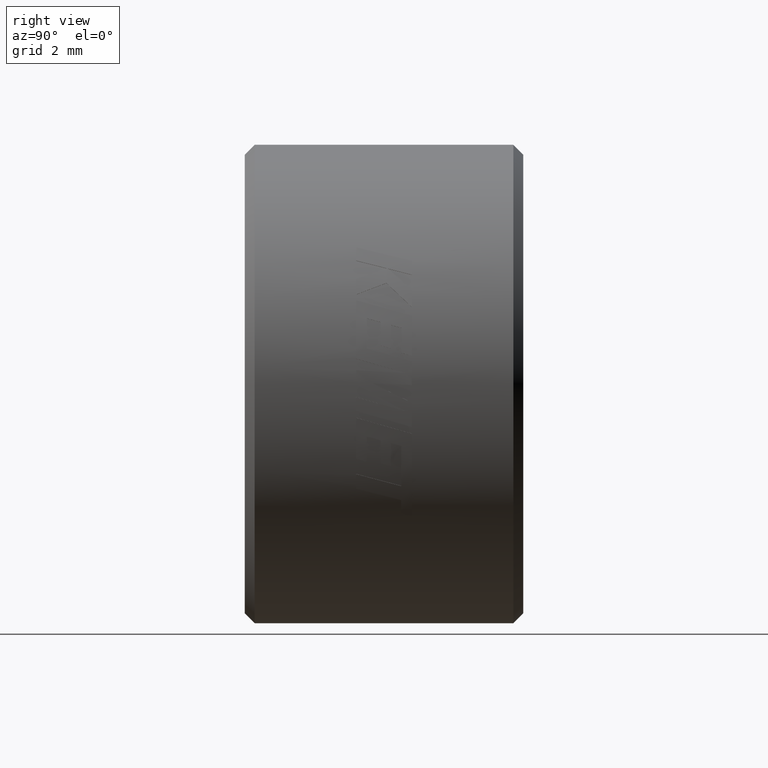
[diagram: clean part render]
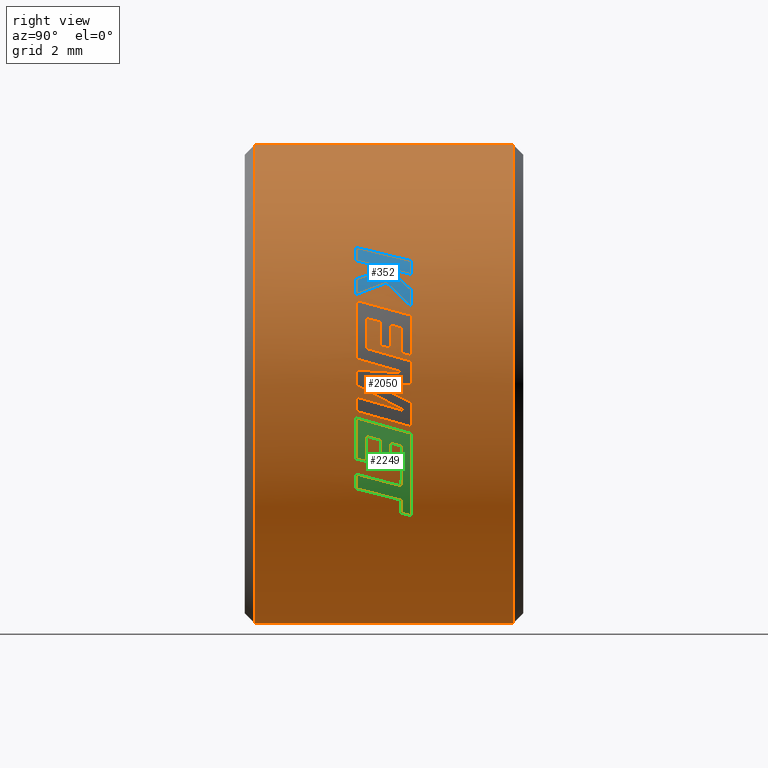
[diagram: same view with three faces highlighted in distinct colors, each labeled with its STEP entity id]
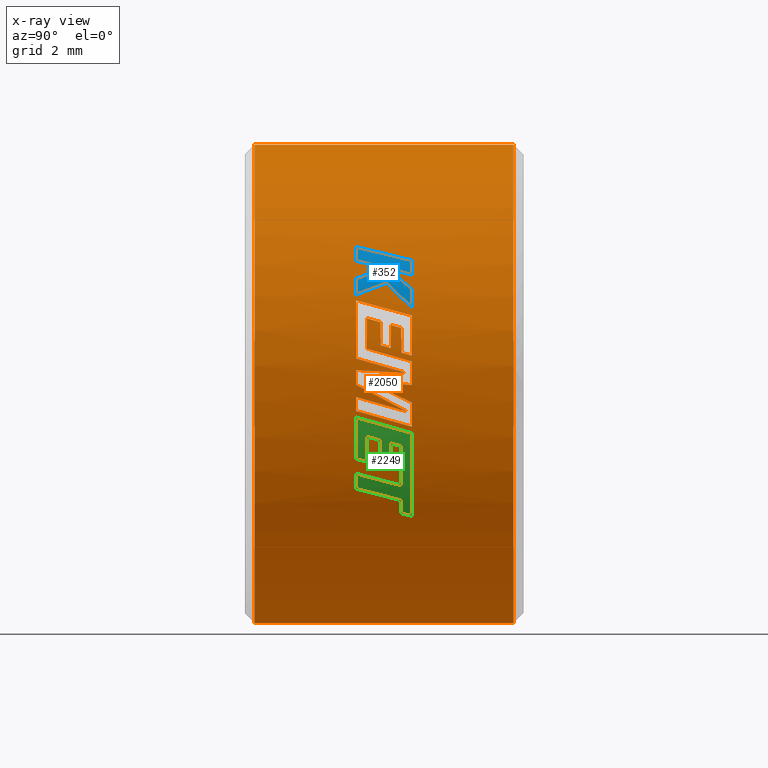
[diagram: x-ray of the same camera — body ghosted, the three highlighted faces saturated]
A machine part, right view with three faces highlighted in distinct colors.
The next image is the same camera in x-ray (body ghosted, the three faces saturated) — at least one of them is partly hidden behind the body in this view.
Their STEP definitions:

[orange] entity #2050 — the highlighted cylindrical surface (partial cylindrical patch) has radius 7.3 mm, axis along (0, 1, 0).
#3 = CARTESIAN_POINT ( 'NONE',  ( 6.112493399950024831, 0.7406178341075990712, -3.991041800646442983 ) ) ;
#13 = ORIENTED_EDGE ( 'NONE', *, *, #1689, .F. ) ;
#14 = CARTESIAN_POINT ( 'NONE',  ( 7.285461595859954009, 0.1586340449149993004, 0.4827625502893818643 ) ) ;
#16 = CARTESIAN_POINT ( 'NONE',  ( 6.506871538614916517, -0.5431233471005533220, 3.311479450781832146 ) ) ;
#20 = CIRCLE ( 'NONE', #1409, 7.300000000000001599 ) ;
#24 = AXIS2_PLACEMENT_3D ( 'NONE', #2420, #331, #114 ) ;
#36 = CARTESIAN_POINT ( 'NONE',  ( 6.995449324557918125, 0.8501155299763408779, 2.086549483607373023 ) ) ;
#42 = CARTESIAN_POINT ( 'NONE',  ( 6.088303293170130637, -0.2839695031597120334, 4.031019522869185856 ) ) ;
#47 = VERTEX_POINT ( 'NONE', #1746 ) ;
#49 = ORIENTED_EDGE ( 'NONE', *, *, #2076, .F. ) ;
#51 = CIRCLE ( 'NONE', #1975, 7.299999999999999822 ) ;
#56 = CARTESIAN_POINT ( 'NONE',  ( 6.858911337823966115, 0.2098482682436767222, -2.499066877830572242 ) ) ;
#63 = DIRECTION ( 'NONE',  ( 0.000000000000000000, 1.000000000000000000, 0.000000000000000000 ) ) ;
#66 = EDGE_CURVE ( 'NONE', #2429, #999, #522, .T. ) ;
#68 = VERTEX_POINT ( 'NONE', #1994 ) ;
#78 = CARTESIAN_POINT ( 'NONE',  ( 0.000000000000000000, -4.250000000000000000, 7.299999999999999822 ) ) ;
#82 = ORIENTED_EDGE ( 'NONE', *, *, #597, .T. ) ;
#89 = CARTESIAN_POINT ( 'NONE',  ( 6.889141781737155412, -0.1045749714812665987, -2.414482452022256531 ) ) ;
#93 = CARTESIAN_POINT ( 'NONE',  ( 7.096822780649392648, 0.5263146279889932000, 1.710294249553516277 ) ) ;
#96 = ORIENTED_EDGE ( 'NONE', *, *, #200, .T. ) ;
#100 = AXIS2_PLACEMENT_3D ( 'NONE', #1646, #879, #2032 ) ;
#101 = VERTEX_POINT ( 'NONE', #1365 ) ;
#105 = AXIS2_PLACEMENT_3D ( 'NONE', #1519, #2434, #397 ) ;
#110 = VERTEX_POINT ( 'NONE', #1962 ) ;
#111 = DIRECTION ( 'NONE',  ( 0.9870061098368327901, 0.000000000000000000, 0.1606827282092322673 ) ) ;
#114 = DIRECTION ( 'NONE',  ( 0.9471424384495856774, 0.000000000000000000, 0.3208133433755098185 ) ) ;
#116 = VERTEX_POINT ( 'NONE', #1668 ) ;
#118 = EDGE_CURVE ( 'NONE', #807, #101, #1166, .T. ) ;
#122 = B_SPLINE_CURVE_WITH_KNOTS ( 'NONE', 3,
 ( #1310, #1723, #971, #2273 ),
 .UNSPECIFIED., .F., .F.,
 ( 4, 4 ),
 ( 0.000000000000000000, 1.000000000000000000 ),
 .UNSPECIFIED. ) ;
#126 = CARTESIAN_POINT ( 'NONE',  ( 7.299936176976895119, -0.8510120597978306778, -0.03052559686518495005 ) ) ;
#133 = VERTEX_POINT ( 'NONE', #1051 ) ;
#139 = CARTESIAN_POINT ( 'NONE',  ( 7.290862271466703071, 0.1586340597794989038, 0.3662349605523763652 ) ) ;
#140 = ORIENTED_EDGE ( 'NONE', *, *, #1040, .T. ) ;
#143 = VERTEX_POINT ( 'NONE', #1068 ) ;
#147 = CIRCLE ( 'NONE', #460, 7.300000000000001599 ) ;
#150 = EDGE_CURVE ( 'NONE', #761, #514, #2218, .T. ) ;
#163 = CARTESIAN_POINT ( 'NONE',  ( 6.948810078442712701, 0.2830729731327297771, 2.242914087129940892 ) ) ;
#174 = CARTESIAN_POINT ( 'NONE',  ( 6.260600167200933264, 0.8501155299763408779, 3.754315589617319926 ) ) ;
#184 = CARTESIAN_POINT ( 'NONE',  ( 0.000000000000000000, -0.5273715039358639611, 0.000000000000000000 ) ) ;
#189 = AXIS2_PLACEMENT_3D ( 'NONE', #1480, #1308, #1518 ) ;
#190 = B_SPLINE_CURVE_WITH_KNOTS ( 'NONE', 3,
 ( #443, #456, #649, #1787 ),
 .UNSPECIFIED., .F., .F.,
 ( 4, 4 ),
 ( 0.000000000000000000, 1.000000000000000000 ),
 .UNSPECIFIED. ) ;
#191 = CIRCLE ( 'NONE', #823, 7.299999999999999822 ) ;
#200 = EDGE_CURVE ( 'NONE', #1707, #496, #2325, .T. ) ;
#205 = CARTESIAN_POINT ( 'NONE',  ( 6.605792806760125480, 0.5216594178173933338, -3.107008431619742606 ) ) ;
#211 = EDGE_CURVE ( 'NONE', #1076, #2300, #122, .T. ) ;
#212 = CARTESIAN_POINT ( 'NONE',  ( 6.714394943870702903, 0.8501155299763408779, 2.864768845426020505 ) ) ;
#214 = DIRECTION ( 'NONE',  ( 0.000000000000000000, 1.000000000000000000, 0.000000000000000000 ) ) ;
#215 = DIRECTION ( 'NONE',  ( 0.000000000000000000, -1.000000000000000000, 0.000000000000000000 ) ) ;
#220 = EDGE_CURVE ( 'NONE', #474, #1110, #447, .T. ) ;
#223 = CARTESIAN_POINT ( 'NONE',  ( 0.000000000000000000, -0.1045749714777425010, 0.000000000000000000 ) ) ;
#227 = DIRECTION ( 'NONE',  ( 0.9943997486555539167, 0.000000000000000000, 0.1056841514786926450 ) ) ;
#233 = CARTESIAN_POINT ( 'NONE',  ( 6.902827839781176422, 0.5247956530197550595, -2.389244768995527402 ) ) ;
#237 = CARTESIAN_POINT ( 'NONE',  ( 7.105202849997345638, -0.2454864591689726594, -1.675622494875166790 ) ) ;
#240 = CARTESIAN_POINT ( 'NONE',  ( 6.730642778031634244, 0.3318084419608506308, 2.838753388900244978 ) ) ;
#241 = DIRECTION ( 'NONE',  ( 0.000000000000000000, 1.000000000000000000, 0.000000000000000000 ) ) ;
#243 = B_SPLINE_CURVE_WITH_KNOTS ( 'NONE', 3,
 ( #2124, #2274, #16, #752 ),
 .UNSPECIFIED., .F., .F.,
 ( 4, 4 ),
 ( 0.000000000000000000, 1.000000000000000000 ),
 .UNSPECIFIED. ) ;
#247 = EDGE_CURVE ( 'NONE', #321, #1253, #51, .T. ) ;
#262 = CARTESIAN_POINT ( 'NONE',  ( 7.052035457176565991, -0.1045749714777425010, 1.886477116406267918 ) ) ;
#266 = VERTEX_POINT ( 'NONE', #174 ) ;
#275 = ORIENTED_EDGE ( 'NONE', *, *, #360, .F. ) ;
#286 = ORIENTED_EDGE ( 'NONE', *, *, #1673, .F. ) ;
#288 = CARTESIAN_POINT ( 'NONE',  ( 7.259118165185543425, -0.8510120597978306778, 0.7714943057944562144 ) ) ;
#290 = CARTESIAN_POINT ( 'NONE',  ( 7.066568195537304753, 0.3153180891601503055, -1.831544650843385691 ) ) ;
#293 = CARTESIAN_POINT ( 'NONE',  ( 6.714556493191160769, -0.3934548914278214737, -2.867409499404730333 ) ) ;
#298 = EDGE_LOOP ( 'NONE', ( #375, #140, #598, #1594 ) ) ;
#302 = VERTEX_POINT ( 'NONE', #1755 ) ;
#305 = ORIENTED_EDGE ( 'NONE', *, *, #1273, .F. ) ;
#316 = CARTESIAN_POINT ( 'NONE',  ( 7.074688188817186862, 0.2099051652596642670, 1.799663032628773696 ) ) ;
#317 = VERTEX_POINT ( 'NONE', #56 ) ;
#321 = VERTEX_POINT ( 'NONE', #36 ) ;
#325 = ORIENTED_EDGE ( 'NONE', *, *, #353, .F. ) ;
#328 = CARTESIAN_POINT ( 'NONE',  ( 8.939921633775678831E-16, 3.949240000000003192, -7.299999999999999822 ) ) ;
#331 = DIRECTION ( 'NONE',  ( 0.000000000000000000, 1.000000000000000000, 0.000000000000000000 ) ) ;
#337 = EDGE_CURVE ( 'NONE', #1061, #1098, #1896, .T. ) ;
#351 = CIRCLE ( 'NONE', #2135, 7.299999999999999822 ) ;
#353 = EDGE_CURVE ( 'NONE', #1110, #1871, #812, .T. ) ;
#357 = ORIENTED_EDGE ( 'NONE', *, *, #1628, .T. ) ;
#360 = EDGE_CURVE ( 'NONE', #2297, #317, #378, .T. ) ;
#361 = CARTESIAN_POINT ( 'NONE',  ( 6.723613766359737731, -0.5431233453417566581, 2.845927832279745218 ) ) ;
#372 = CARTESIAN_POINT ( 'NONE',  ( 6.347453327883020968, -0.2352346531015485076, 3.606608355591114812 ) ) ;
#374 = CARTESIAN_POINT ( 'NONE',  ( 7.074688188817186862, 0.2099051652596642670, 1.799663032628773696 ) ) ;
#375 = ORIENTED_EDGE ( 'NONE', *, *, #914, .T. ) ;
#378 = B_SPLINE_CURVE_WITH_KNOTS ( 'NONE', 3,
 ( #1019, #2159, #1781, #838 ),
 .UNSPECIFIED., .F., .F.,
 ( 4, 4 ),
 ( 0.000000000000000000, 1.000000000000000000 ),
 .UNSPECIFIED. ) ;
#384 = CARTESIAN_POINT ( 'NONE',  ( 6.714394943870702903, 0.8501155299763408779, 2.864768845426020505 ) ) ;
#385 = CARTESIAN_POINT ( 'NONE',  ( 7.282947683597197575, 0.1634956723210774510, -0.5660212896633268764 ) ) ;
#388 = ORIENTED_EDGE ( 'NONE', *, *, #1658, .F. ) ;
#397 = DIRECTION ( 'NONE',  ( 0.9837395529278075701, 0.000000000000000000, -0.1796009242888164936 ) ) ;
#406 = CARTESIAN_POINT ( 'NONE',  ( 6.809152337271456190, 0.5240646097381648216, -2.631623918387781647 ) ) ;
#413 = EDGE_CURVE ( 'NONE', #999, #886, #508, .T. ) ;
#427 = CARTESIAN_POINT ( 'NONE',  ( 7.205144601808880722, -0.1045749714777425010, 1.172983915927389154 ) ) ;
#431 = CARTESIAN_POINT ( 'NONE',  ( 7.123130494870346219, -0.5273094344712733195, -1.597188765627953311 ) ) ;
#443 = CARTESIAN_POINT ( 'NONE',  ( 7.238104713352751851, 0.5263146279889932000, 0.9485990504637384912 ) ) ;
#447 = B_SPLINE_CURVE_WITH_KNOTS ( 'NONE', 3,
 ( #794, #2446, #385, #2308 ),
 .UNSPECIFIED., .F., .F.,
 ( 4, 4 ),
 ( 0.000000000000000000, 1.000000000000000000 ),
 .UNSPECIFIED. ) ;
#449 = CARTESIAN_POINT ( 'NONE',  ( 6.747007173853793560, 0.5232628784822626056, -2.792420406738112426 ) ) ;
#450 = EDGE_CURVE ( 'NONE', #133, #474, #2131, .T. ) ;
#456 = CARTESIAN_POINT ( 'NONE',  ( 7.242088234351558462, 0.6342482619910120301, 0.9182035508022885484 ) ) ;
#460 = AXIS2_PLACEMENT_3D ( 'NONE', #223, #520, #111 ) ;
#461 = CIRCLE ( 'NONE', #1060, 7.299999999999999822 ) ;
#462 = CARTESIAN_POINT ( 'NONE',  ( 6.567017472053961136, -0.8510120597978306778, -3.188147035777679772 ) ) ;
#474 = VERTEX_POINT ( 'NONE', #126 ) ;
#482 = EDGE_LOOP ( 'NONE', ( #13, #1395, #756, #357, #934, #1794, #1280, #996, #1999, #1301, #305 ) ) ;
#487 = EDGE_CURVE ( 'NONE', #1013, #68, #2391, .T. ) ;
#496 = VERTEX_POINT ( 'NONE', #1234 ) ;
#505 = DIRECTION ( 'NONE',  ( 0.000000000000000000, 1.000000000000000000, 0.000000000000000000 ) ) ;
#508 = CIRCLE ( 'NONE', #100, 7.299999999999999822 ) ;
#514 = VERTEX_POINT ( 'NONE', #2227 ) ;
#517 = VERTEX_POINT ( 'NONE', #526 ) ;
#520 = DIRECTION ( 'NONE',  ( 0.000000000000000000, 1.000000000000000000, 0.000000000000000000 ) ) ;
#521 = EDGE_CURVE ( 'NONE', #674, #2190, #1768, .T. ) ;
#522 = CIRCLE ( 'NONE', #2388, 7.300000000000000711 ) ;
#526 = CARTESIAN_POINT ( 'NONE',  ( 7.205144601808880722, -0.1045749714777425010, 1.172983915927389154 ) ) ;
#530 = B_SPLINE_CURVE_WITH_KNOTS ( 'NONE', 3,
 ( #691, #163, #1250, #923 ),
 .UNSPECIFIED., .F., .F.,
 ( 4, 4 ),
 ( 0.000000000000000000, 1.000000000000000000 ),
 .UNSPECIFIED. ) ;
#537 = ORIENTED_EDGE ( 'NONE', *, *, #1940, .F. ) ;
#539 = CARTESIAN_POINT ( 'NONE',  ( 6.934706639955140695, -0.8510120597978306778, -2.280316604720071361 ) ) ;
#540 = DIRECTION ( 'NONE',  ( 0.9999912571201223788, 0.000000000000000000, -0.004181588611669147595 ) ) ;
#548 = DIRECTION ( 'NONE',  ( 0.000000000000000000, 1.000000000000000000, 0.000000000000000000 ) ) ;
#550 = B_SPLINE_CURVE_WITH_KNOTS ( 'NONE', 3,
 ( #427, #1362, #2294, #1185 ),
 .UNSPECIFIED., .F., .F.,
 ( 4, 4 ),
 ( 0.000000000000000000, 1.000000000000000000 ),
 .UNSPECIFIED. ) ;
#552 = CARTESIAN_POINT ( 'NONE',  ( 6.095176157169534648, 0.8501155299763416551, -4.017315971276347319 ) ) ;
#555 = CARTESIAN_POINT ( 'NONE',  ( 7.019945535761064725, -0.5273715039358639611, 2.002589492369393209 ) ) ;
#559 = EDGE_LOOP ( 'NONE', ( #388, #325, #845, #1035, #2167, #1992, #2037, #1907, #689, #2245, #876, #1607, #1022, #1674, #590, #2116, #1841, #96, #1961, #82, #1129, #1063, #1918, #286 ) ) ;
#561 = AXIS2_PLACEMENT_3D ( 'NONE', #1972, #2394, #1441 ) ;
#564 = DIRECTION ( 'NONE',  ( 0.000000000000000000, 1.000000000000000000, 0.000000000000000000 ) ) ;
#571 = VERTEX_POINT ( 'NONE', #596 ) ;
#572 = CARTESIAN_POINT ( 'NONE',  ( 6.915395552271021096, -0.6352103095863179671, -2.338427203550626388 ) ) ;
#576 = CARTESIAN_POINT ( 'NONE',  ( 7.267448114909284662, 0.8501155299763416551, 0.6886202851365255118 ) ) ;
#579 = CARTESIAN_POINT ( 'NONE',  ( 6.385201797122649126, 0.5216594178131432891, -3.538247872891566281 ) ) ;
#588 = DIRECTION ( 'NONE',  ( 0.9889629529746878367, 0.000000000000000000, 0.1481630103756847727 ) ) ;
#590 = ORIENTED_EDGE ( 'NONE', *, *, #1922, .F. ) ;
#595 = ORIENTED_EDGE ( 'NONE', *, *, #118, .F. ) ;
#596 = CARTESIAN_POINT ( 'NONE',  ( 6.390118589136613458, 0.07265405210956157878, 3.529360341020833403 ) ) ;
#597 = EDGE_CURVE ( 'NONE', #1345, #2300, #1255, .T. ) ;
#598 = ORIENTED_EDGE ( 'NONE', *, *, #1315, .T. ) ;
#616 = VERTEX_POINT ( 'NONE', #1295 ) ;
#629 = B_SPLINE_CURVE_WITH_KNOTS ( 'NONE', 3,
 ( #963, #1722, #14, #781 ),
 .UNSPECIFIED., .F., .F.,
 ( 4, 4 ),
 ( 0.000000000000000000, 1.000000000000000000 ),
 .UNSPECIFIED. ) ;
#630 = B_SPLINE_CURVE_WITH_KNOTS ( 'NONE', 3,
 ( #579, #1341, #1708, #758 ),
 .UNSPECIFIED., .F., .F.,
 ( 4, 4 ),
 ( 0.000000000000000000, 1.000000000000000000 ),
 .UNSPECIFIED. ) ;
#632 = CARTESIAN_POINT ( 'NONE',  ( 7.095753562042519391, -0.1045749714812665987, -1.714724872030758407 ) ) ;
#638 = DIRECTION ( 'NONE',  ( 0.9437180522927610671, 0.000000000000000000, -0.3307510208249666572 ) ) ;
#648 = CARTESIAN_POINT ( 'NONE',  ( 0.000000000000000000, 0.8501155299763416551, 0.000000000000000000 ) ) ;
#649 = CARTESIAN_POINT ( 'NONE',  ( 7.245880289766500226, 0.7421818959743219368, 0.8877829583927359103 ) ) ;
#653 = CARTESIAN_POINT ( 'NONE',  ( 7.141665750372079735, 0.8501155299763416551, -1.512154195167410453 ) ) ;
#656 = CARTESIAN_POINT ( 'NONE',  ( 7.281299206343015307, -0.3437579305720688261, -0.5421260518339600099 ) ) ;
#668 = EDGE_CURVE ( 'NONE', #1741, #302, #1146, .T. ) ;
#670 = FACE_OUTER_BOUND ( 'NONE', #298, .T. ) ;
#674 = VERTEX_POINT ( 'NONE', #1878 ) ;
#684 = CARTESIAN_POINT ( 'NONE',  ( 6.385201797122649126, 0.5216594178131432891, -3.538247872891566281 ) ) ;
#689 = ORIENTED_EDGE ( 'NONE', *, *, #1239, .F. ) ;
#691 = CARTESIAN_POINT ( 'NONE',  ( 6.995449324557918125, 0.8501155299763408779, 2.086549483607373023 ) ) ;
#694 = ORIENTED_EDGE ( 'NONE', *, *, #2432, .F. ) ;
#696 = B_SPLINE_CURVE_WITH_KNOTS ( 'NONE', 3,
 ( #952, #2422, #2250, #772 ),
 .UNSPECIFIED., .F., .F.,
 ( 4, 4 ),
 ( 0.000000000000000000, 1.000000000000000000 ),
 .UNSPECIFIED. ) ;
#697 = CARTESIAN_POINT ( 'NONE',  ( 7.096822780649392648, 0.5263146279889932000, 1.710294249553516277 ) ) ;
#709 = CARTESIAN_POINT ( 'NONE',  ( 6.605792806760125480, 0.5216594178173933338, -3.107008431619742606 ) ) ;
#723 = CARTESIAN_POINT ( 'NONE',  ( 7.299935798271490306, -0.3651918769664191378, 0.03061602708350550858 ) ) ;
#724 = EDGE_CURVE ( 'NONE', #68, #1468, #1761, .T. ) ;
#725 = CARTESIAN_POINT ( 'NONE',  ( 6.431613185378098230, 0.3664978149600414126, 3.453861073281790706 ) ) ;
#736 = DIRECTION ( 'NONE',  ( 0.000000000000000000, 1.000000000000000000, 0.000000000000000000 ) ) ;
#741 = CARTESIAN_POINT ( 'NONE',  ( 6.764033234458074695, -0.8510120597978306778, -2.745515325607679191 ) ) ;
#744 = DIRECTION ( 'NONE',  ( 0.9395768955923241572, 0.000000000000000000, -0.3423379284699414327 ) ) ;
#748 = EDGE_CURVE ( 'NONE', #2429, #761, #768, .T. ) ;
#749 = CARTESIAN_POINT ( 'NONE',  ( 0.000000000000000000, -0.8510120597978306778, 0.000000000000000000 ) ) ;
#752 = CARTESIAN_POINT ( 'NONE',  ( 6.561052838586001634, -0.8510120597978302337, 3.200403982200149766 ) ) ;
#756 = ORIENTED_EDGE ( 'NONE', *, *, #1822, .F. ) ;
#757 = CIRCLE ( 'NONE', #2452, 7.299999999999999822 ) ;
#758 = CARTESIAN_POINT ( 'NONE',  ( 6.146616780213035369, 0.5216224423916486774, -3.938159742469005575 ) ) ;
#761 = VERTEX_POINT ( 'NONE', #1933 ) ;
#768 = B_SPLINE_CURVE_WITH_KNOTS ( 'NONE', 3,
 ( #653, #1399, #1218, #791 ),
 .UNSPECIFIED., .F., .F.,
 ( 4, 4 ),
 ( 0.000000000000000000, 1.000000000000000000 ),
 .UNSPECIFIED. ) ;
#772 = CARTESIAN_POINT ( 'NONE',  ( 7.181298736372995428, 0.8501155299763408779, -1.311086747308360279 ) ) ;
#774 = CARTESIAN_POINT ( 'NONE',  ( 7.181298736372995428, 0.8501155299763408779, -1.311086747308360279 ) ) ;
#776 = EDGE_CURVE ( 'NONE', #1267, #517, #147, .T. ) ;
#777 = EDGE_CURVE ( 'NONE', #1377, #1384, #787, .T. ) ;
#781 = CARTESIAN_POINT ( 'NONE',  ( 7.292172329180727886, 0.6634571195694959345, 0.3379685215089042183 ) ) ;
#787 = CIRCLE ( 'NONE', #2176, 7.299999999999999822 ) ;
#791 = CARTESIAN_POINT ( 'NONE',  ( 7.226909619153015107, -0.8510120597978306778, -1.030425813241113930 ) ) ;
#794 = CARTESIAN_POINT ( 'NONE',  ( 7.299936176976895119, -0.8510120597978306778, -0.03052559686518495005 ) ) ;
#799 = EDGE_CURVE ( 'NONE', #875, #2447, #20, .T. ) ;
#800 = CARTESIAN_POINT ( 'NONE',  ( 7.289214586617587699, -0.8510120597978306778, -0.3966745646514141521 ) ) ;
#801 = CARTESIAN_POINT ( 'NONE',  ( 7.269028946074299391, 0.1634961529383630874, -0.6873405047736287354 ) ) ;
#804 = B_SPLINE_CURVE_WITH_KNOTS ( 'NONE', 3,
 ( #316, #1075, #1608, #697 ),
 .UNSPECIFIED., .F., .F.,
 ( 4, 4 ),
 ( 0.000000000000000000, 1.000000000000000000 ),
 .UNSPECIFIED. ) ;
#807 = VERTEX_POINT ( 'NONE', #709 ) ;
#812 = B_SPLINE_CURVE_WITH_KNOTS ( 'NONE', 3,
 ( #1003, #801, #656, #1766 ),
 .UNSPECIFIED., .F., .F.,
 ( 4, 4 ),
 ( 0.000000000000000000, 1.000000000000000000 ),
 .UNSPECIFIED. ) ;
#814 = CARTESIAN_POINT ( 'NONE',  ( 7.277590907692912836, 0.8501155299763416551, -0.5715510303248966251 ) ) ;
#823 = AXIS2_PLACEMENT_3D ( 'NONE', #2154, #241, #638 ) ;
#827 = ORIENTED_EDGE ( 'NONE', *, *, #487, .F. ) ;
#838 = CARTESIAN_POINT ( 'NONE',  ( 6.858911337823966115, 0.2098482682436767222, -2.499066877830572242 ) ) ;
#840 = ORIENTED_EDGE ( 'NONE', *, *, #960, .T. ) ;
#845 = ORIENTED_EDGE ( 'NONE', *, *, #220, .F. ) ;
#849 = DIRECTION ( 'NONE',  ( 0.9915211936099658230, 0.000000000000000000, 0.1299450754059915669 ) ) ;
#852 = CARTESIAN_POINT ( 'NONE',  ( 6.448945931642643181, 0.06410224945998757584, -3.423213772140319744 ) ) ;
#854 = CARTESIAN_POINT ( 'NONE',  ( 6.809152337271456190, 0.5240646097381648216, -2.631623918387781647 ) ) ;
#855 = EDGE_LOOP ( 'NONE', ( #595, #537, #900, #827, #840, #275, #2163, #1850, #1055, #49, #1478, #1245, #1391, #2129, #1105, #694, #945, #868 ) ) ;
#857 = CARTESIAN_POINT ( 'NONE',  ( 6.774781451863121085, 0.8501155299763416551, -2.718885117008701169 ) ) ;
#858 = CARTESIAN_POINT ( 'NONE',  ( 7.299917031302565640, 0.8501155299763408779, -0.03480425403212567687 ) ) ;
#862 = AXIS2_PLACEMENT_3D ( 'NONE', #1649, #2241, #1080 ) ;
#868 = ORIENTED_EDGE ( 'NONE', *, *, #901, .F. ) ;
#871 = CARTESIAN_POINT ( 'NONE',  ( 6.661783990219043439, 0.06410224944738333874, -2.987965897595435738 ) ) ;
#875 = VERTEX_POINT ( 'NONE', #93 ) ;
#876 = ORIENTED_EDGE ( 'NONE', *, *, #1079, .F. ) ;
#879 = DIRECTION ( 'NONE',  ( 0.000000000000000000, 1.000000000000000000, 0.000000000000000000 ) ) ;
#886 = VERTEX_POINT ( 'NONE', #2000 ) ;
#889 = VERTEX_POINT ( 'NONE', #288 ) ;
#890 = CARTESIAN_POINT ( 'NONE',  ( 7.050856246173647257, 0.5262577309738990516, -1.890879741230009126 ) ) ;
#896 = EDGE_CURVE ( 'NONE', #1056, #1076, #1464, .T. ) ;
#900 = ORIENTED_EDGE ( 'NONE', *, *, #724, .F. ) ;
#901 = EDGE_CURVE ( 'NONE', #101, #2061, #1902, .T. ) ;
#902 = CARTESIAN_POINT ( 'NONE',  ( 7.293321685122244880, 0.4450129470579997637, -0.3712501705301491928 ) ) ;
#914 = EDGE_CURVE ( 'NONE', #2384, #2293, #351, .T. ) ;
#923 = CARTESIAN_POINT ( 'NONE',  ( 6.839914312778250682, -0.8510120597978306778, 2.550602319816090979 ) ) ;
#926 = DIRECTION ( 'NONE',  ( 0.000000000000000000, 1.000000000000000000, 0.000000000000000000 ) ) ;
#929 = CARTESIAN_POINT ( 'NONE',  ( 0.000000000000000000, 3.949240000000003192, 7.299999999999999822 ) ) ;
#934 = ORIENTED_EDGE ( 'NONE', *, *, #2142, .F. ) ;
#938 = CARTESIAN_POINT ( 'NONE',  ( 6.495747333697522663, 0.8501155299763408779, 3.330955805284953275 ) ) ;
#945 = ORIENTED_EDGE ( 'NONE', *, *, #2047, .F. ) ;
#946 = VECTOR ( 'NONE', #63, 1000.000000000000000 ) ;
#948 = CIRCLE ( 'NONE', #1264, 7.299999999999999822 ) ;
#952 = CARTESIAN_POINT ( 'NONE',  ( 7.252961941319671091, -0.8510120597978306778, -0.8273711850000451395 ) ) ;
#956 = VERTEX_POINT ( 'NONE', #1168 ) ;
#960 = EDGE_CURVE ( 'NONE', #1013, #317, #461, .T. ) ;
#963 = CARTESIAN_POINT ( 'NONE',  ( 7.259118165185543425, -0.8510120597978306778, 0.7714943057944562144 ) ) ;
#971 = CARTESIAN_POINT ( 'NONE',  ( 7.300020999877717465, 0.4450130609951883920, -0.01299766763704229486 ) ) ;
#985 = CARTESIAN_POINT ( 'NONE',  ( 7.052035457176565991, -0.1045749714777425010, 1.886477116406267918 ) ) ;
#996 = ORIENTED_EDGE ( 'NONE', *, *, #1136, .F. ) ;
#997 = CARTESIAN_POINT ( 'NONE',  ( 6.829216316245926954, 0.5909611401250713936, 2.592658387520891061 ) ) ;
#999 = VERTEX_POINT ( 'NONE', #857 ) ;
#1003 = CARTESIAN_POINT ( 'NONE',  ( 7.252425777533104245, 0.6707502821641256885, -0.8320578954455862819 ) ) ;
#1013 = VERTEX_POINT ( 'NONE', #1393 ) ;
#1019 = CARTESIAN_POINT ( 'NONE',  ( 6.889141781737155412, -0.1045749714812665987, -2.414482452022256531 ) ) ;
#1022 = ORIENTED_EDGE ( 'NONE', *, *, #1998, .F. ) ;
#1035 = ORIENTED_EDGE ( 'NONE', *, *, #450, .F. ) ;
#1036 = CARTESIAN_POINT ( 'NONE',  ( 7.252425777533104245, 0.6707502821641256885, -0.8320578954455862819 ) ) ;
#1039 = B_SPLINE_CURVE_WITH_KNOTS ( 'NONE', 3,
 ( #1494, #361, #1690, #2443 ),
 .UNSPECIFIED., .F., .F.,
 ( 4, 4 ),
 ( 0.000000000000000000, 1.000000000000000000 ),
 .UNSPECIFIED. ) ;
#1040 = EDGE_CURVE ( 'NONE', #2293, #2052, #2386, .T. ) ;
#1045 = CARTESIAN_POINT ( 'NONE',  ( 6.509580661288057790, -0.3934548914446760470, -3.306456679469108817 ) ) ;
#1047 = CARTESIAN_POINT ( 'NONE',  ( 7.058805686979550131, 0.4207879100574253850, -1.861237261521895947 ) ) ;
#1051 = CARTESIAN_POINT ( 'NONE',  ( 7.287749192421867583, -0.8510120597978311219, 0.4227430760573279711 ) ) ;
#1054 = CARTESIAN_POINT ( 'NONE',  ( 0.000000000000000000, -3.949239999999998751, 7.299999999999999822 ) ) ;
#1055 = ORIENTED_EDGE ( 'NONE', *, *, #2074, .T. ) ;
#1056 = VERTEX_POINT ( 'NONE', #814 ) ;
#1057 = DIRECTION ( 'NONE',  ( 0.000000000000000000, 1.000000000000000000, 0.000000000000000000 ) ) ;
#1060 = AXIS2_PLACEMENT_3D ( 'NONE', #2119, #1350, #744 ) ;
#1061 = VERTEX_POINT ( 'NONE', #431 ) ;
#1062 = CARTESIAN_POINT ( 'NONE',  ( 7.030961286246839137, -0.3864393264257119931, 1.963974504754442574 ) ) ;
#1063 = ORIENTED_EDGE ( 'NONE', *, *, #896, .F. ) ;
#1064 = CARTESIAN_POINT ( 'NONE',  ( 0.000000000000000000, -0.8510120597978306778, 0.000000000000000000 ) ) ;
#1068 = CARTESIAN_POINT ( 'NONE',  ( 6.619000150429576124, 0.07265405210958153503, 3.078771996854144266 ) ) ;
#1075 = CARTESIAN_POINT ( 'NONE',  ( 7.082254145782520993, 0.3153749861758413098, 1.769920361134564413 ) ) ;
#1076 = VERTEX_POINT ( 'NONE', #1366 ) ;
#1079 = EDGE_CURVE ( 'NONE', #2447, #1253, #190, .T. ) ;
#1080 = DIRECTION ( 'NONE',  ( 0.9499598136924850555, 0.000000000000000000, -0.3123721376328865151 ) ) ;
#1098 = VERTEX_POINT ( 'NONE', #1995 ) ;
#1100 = CARTESIAN_POINT ( 'NONE',  ( 7.220882907733009226, -0.8510120597978306778, 1.071844220402055070 ) ) ;
#1105 = ORIENTED_EDGE ( 'NONE', *, *, #2126, .F. ) ;
#1109 = CIRCLE ( 'NONE', #105, 7.299999999999999822 ) ;
#1110 = VERTEX_POINT ( 'NONE', #1036 ) ;
#1117 = CARTESIAN_POINT ( 'NONE',  ( 6.398241521922242825, 0.1246889568948484905, 3.514613126241654673 ) ) ;
#1120 = DIRECTION ( 'NONE',  ( 0.000000000000000000, 1.000000000000000000, 0.000000000000000000 ) ) ;
#1129 = ORIENTED_EDGE ( 'NONE', *, *, #211, .F. ) ;
#1132 = B_SPLINE_CURVE_WITH_KNOTS ( 'NONE', 3,
 ( #2079, #1678, #372, #1914 ),
 .UNSPECIFIED., .F., .F.,
 ( 4, 4 ),
 ( 0.000000000000000000, 1.000000000000000000 ),
 .UNSPECIFIED. ) ;
#1134 = CARTESIAN_POINT ( 'NONE',  ( 7.287749192421867583, -0.8510120597978311219, 0.4227430760573279711 ) ) ;
#1136 = EDGE_CURVE ( 'NONE', #143, #2017, #2322, .T. ) ;
#1139 = DIRECTION ( 'NONE',  ( 0.8898284018763729097, 0.000000000000000000, 0.4562953157924592995 ) ) ;
#1146 = B_SPLINE_CURVE_WITH_KNOTS ( 'NONE', 3,
 ( #212, #2431, #2247, #1117 ),
 .UNSPECIFIED., .F., .F.,
 ( 4, 4 ),
 ( 0.000000000000000000, 1.000000000000000000 ),
 .UNSPECIFIED. ) ;
#1158 = CARTESIAN_POINT ( 'NONE',  ( 0.000000000000000000, -3.949239999999998751, 0.000000000000000000 ) ) ;
#1159 = B_SPLINE_CURVE_WITH_KNOTS ( 'NONE', 3,
 ( #462, #1045, #852, #684 ),
 .UNSPECIFIED., .F., .F.,
 ( 4, 4 ),
 ( 0.000000000000000000, 1.000000000000000000 ),
 .UNSPECIFIED. ) ;
#1162 = CARTESIAN_POINT ( 'NONE',  ( 6.260600167200933264, 0.8501155299763408779, 3.754315589617319926 ) ) ;
#1166 = B_SPLINE_CURVE_WITH_KNOTS ( 'NONE', 3,
 ( #1826, #871, #293, #741 ),
 .UNSPECIFIED., .F., .F.,
 ( 4, 4 ),
 ( 0.000000000000000000, 1.000000000000000000 ),
 .UNSPECIFIED. ) ;
#1168 = CARTESIAN_POINT ( 'NONE',  ( 6.495747333697522663, 0.8501155299763408779, 3.330955805284953275 ) ) ;
#1174 = DIRECTION ( 'NONE',  ( 0.000000000000000000, 1.000000000000000000, 0.000000000000000000 ) ) ;
#1185 = CARTESIAN_POINT ( 'NONE',  ( 7.219032092545734081, 0.2099051652596642670, 1.084239662987275254 ) ) ;
#1193 = CARTESIAN_POINT ( 'NONE',  ( 7.114328909956751268, -0.3863979467835677029, -1.636442008106508528 ) ) ;
#1200 = CARTESIAN_POINT ( 'NONE',  ( 7.050856246173647257, 0.5262577309738990516, -1.890879741230009126 ) ) ;
#1202 = CARTESIAN_POINT ( 'NONE',  ( 6.679164060674461112, 0.5224611490732955499, -2.951014229480543261 ) ) ;
#1217 = VECTOR ( 'NONE', #2360, 1000.000000000000000 ) ;
#1218 = CARTESIAN_POINT ( 'NONE',  ( 7.203887177835682998, -0.2839695030223060024, -1.191894111564583580 ) ) ;
#1234 = CARTESIAN_POINT ( 'NONE',  ( 7.219429556715220464, -0.5273715039358639611, 1.081589975742504928 ) ) ;
#1239 = EDGE_CURVE ( 'NONE', #321, #674, #530, .T. ) ;
#1245 = ORIENTED_EDGE ( 'NONE', *, *, #748, .F. ) ;
#1250 = CARTESIAN_POINT ( 'NONE',  ( 6.896926221803407309, -0.2839695029542190774, 2.397714286463994426 ) ) ;
#1253 = VERTEX_POINT ( 'NONE', #1870 ) ;
#1255 = CIRCLE ( 'NONE', #189, 7.299999999999999822 ) ;
#1264 = AXIS2_PLACEMENT_3D ( 'NONE', #1517, #1282, #2043 ) ;
#1267 = VERTEX_POINT ( 'NONE', #985 ) ;
#1270 = DIRECTION ( 'NONE',  ( 0.9889085058281827934, 0.000000000000000000, 0.1485259812311336414 ) ) ;
#1273 = EDGE_CURVE ( 'NONE', #571, #1322, #243, .T. ) ;
#1274 = CARTESIAN_POINT ( 'NONE',  ( 6.385201797122649126, 0.5216594178131432891, -3.538247872891566281 ) ) ;
#1275 = VERTEX_POINT ( 'NONE', #774 ) ;
#1280 = ORIENTED_EDGE ( 'NONE', *, *, #1571, .T. ) ;
#1282 = DIRECTION ( 'NONE',  ( 0.000000000000000000, 1.000000000000000000, 0.000000000000000000 ) ) ;
#1289 = CARTESIAN_POINT ( 'NONE',  ( 6.914139800681973647, 0.8501155299763416551, 2.341937406641227515 ) ) ;
#1295 = CARTESIAN_POINT ( 'NONE',  ( 5.995331081093310033, -0.8510120597978306778, 4.164853566222529224 ) ) ;
#1301 = ORIENTED_EDGE ( 'NONE', *, *, #2127, .F. ) ;
#1306 = B_SPLINE_CURVE_WITH_KNOTS ( 'NONE', 3,
 ( #406, #449, #1202, #205 ),
 .UNSPECIFIED., .F., .F.,
 ( 4, 4 ),
 ( 0.000000000000000000, 1.000000000000000000 ),
 .UNSPECIFIED. ) ;
#1308 = DIRECTION ( 'NONE',  ( 0.000000000000000000, 1.000000000000000000, 0.000000000000000000 ) ) ;
#1309 = DIRECTION ( 'NONE',  ( 0.9935564303177631951, 0.000000000000000000, -0.1133385184931568479 ) ) ;
#1310 = CARTESIAN_POINT ( 'NONE',  ( 7.299935798271490306, -0.3651918769664191378, 0.03061602708350550858 ) ) ;
#1311 = CARTESIAN_POINT ( 'NONE',  ( 7.219032092545734081, 0.2099051652596642670, 1.084239662987275254 ) ) ;
#1313 = CARTESIAN_POINT ( 'NONE',  ( 7.141665750372079735, 0.8501155299763416551, -1.512154195167410453 ) ) ;
#1315 = EDGE_CURVE ( 'NONE', #2052, #1603, #757, .T. ) ;
#1322 = VERTEX_POINT ( 'NONE', #1348 ) ;
#1339 = B_SPLINE_CURVE_WITH_KNOTS ( 'NONE', 3,
 ( #1374, #1732, #1354, #2122 ),
 .UNSPECIFIED., .F., .F.,
 ( 4, 4 ),
 ( 0.000000000000000000, 1.000000000000000000 ),
 .UNSPECIFIED. ) ;
#1341 = CARTESIAN_POINT ( 'NONE',  ( 6.309952914932859258, 0.5216470926664097396, -3.674043700388823108 ) ) ;
#1345 = VERTEX_POINT ( 'NONE', #576 ) ;
#1346 = CARTESIAN_POINT ( 'NONE',  ( 6.176792412702186041, 0.2830729733382226221, 3.894071246621390259 ) ) ;
#1348 = CARTESIAN_POINT ( 'NONE',  ( 6.561052838586001634, -0.8510120597978302337, 3.200403982200149766 ) ) ;
#1350 = DIRECTION ( 'NONE',  ( 0.000000000000000000, 1.000000000000000000, 0.000000000000000000 ) ) ;
#1354 = CARTESIAN_POINT ( 'NONE',  ( 7.238984167634223255, -0.06820914998566750265, 0.9510662660143339719 ) ) ;
#1362 = CARTESIAN_POINT ( 'NONE',  ( 7.209955703342702193, 0.0002517407736281291946, 1.143431351928448469 ) ) ;
#1365 = CARTESIAN_POINT ( 'NONE',  ( 6.764033234458074695, -0.8510120597978306778, -2.745515325607679191 ) ) ;
#1366 = CARTESIAN_POINT ( 'NONE',  ( 7.299935798271490306, -0.3651918769664191378, 0.03061602708350550858 ) ) ;
#1374 = CARTESIAN_POINT ( 'NONE',  ( 7.267448114909284662, 0.8501155299763416551, 0.6886202851365255118 ) ) ;
#1377 = VERTEX_POINT ( 'NONE', #374 ) ;
#1383 = EDGE_CURVE ( 'NONE', #2190, #889, #1735, .T. ) ;
#1384 = VERTEX_POINT ( 'NONE', #1311 ) ;
#1385 = CARTESIAN_POINT ( 'NONE',  ( 6.983548334618532749, 0.5255266876923088137, -2.141862602941020377 ) ) ;
#1391 = ORIENTED_EDGE ( 'NONE', *, *, #66, .T. ) ;
#1393 = CARTESIAN_POINT ( 'NONE',  ( 7.074143154473957473, 0.2098482682436767222, -1.801804270726775403 ) ) ;
#1395 = ORIENTED_EDGE ( 'NONE', *, *, #2177, .F. ) ;
#1399 = CARTESIAN_POINT ( 'NONE',  ( 7.175451279396724225, 0.2830729732008163690, -1.352590470605054440 ) ) ;
#1409 = AXIS2_PLACEMENT_3D ( 'NONE', #1415, #1635, #849 ) ;
#1415 = CARTESIAN_POINT ( 'NONE',  ( 0.000000000000000000, 0.5263146279889932000, 0.000000000000000000 ) ) ;
#1427 = CYLINDRICAL_SURFACE ( 'NONE', #561, 7.299999999999999822 ) ;
#1441 = DIRECTION ( 'NONE',  ( 0.000000000000000000, 0.000000000000000000, 1.000000000000000000 ) ) ;
#1451 = VERTEX_POINT ( 'NONE', #1576 ) ;
#1453 = B_SPLINE_CURVE_WITH_KNOTS ( 'NONE', 3,
 ( #1162, #1346, #42, #2328 ),
 .UNSPECIFIED., .F., .F.,
 ( 4, 4 ),
 ( 0.000000000000000000, 1.000000000000000000 ),
 .UNSPECIFIED. ) ;
#1455 = CARTESIAN_POINT ( 'NONE',  ( 6.914139800681973647, 0.8501155299763416551, 2.341937406641227515 ) ) ;
#1464 = B_SPLINE_CURVE_WITH_KNOTS ( 'NONE', 3,
 ( #1845, #902, #1659, #723 ),
 .UNSPECIFIED., .F., .F.,
 ( 4, 4 ),
 ( 0.000000000000000000, 1.000000000000000000 ),
 .UNSPECIFIED. ) ;
#1468 = VERTEX_POINT ( 'NONE', #854 ) ;
#1469 = CARTESIAN_POINT ( 'NONE',  ( 6.464119518024062039, 0.6083066719111479559, 3.392633687352794691 ) ) ;
#1478 = ORIENTED_EDGE ( 'NONE', *, *, #150, .F. ) ;
#1480 = CARTESIAN_POINT ( 'NONE',  ( 0.000000000000000000, 0.8501155299763416551, 0.000000000000000000 ) ) ;
#1484 = DIRECTION ( 'NONE',  ( 0.000000000000000000, 1.000000000000000000, 0.000000000000000000 ) ) ;
#1491 = DIRECTION ( 'NONE',  ( 0.9275750614849492814, 0.000000000000000000, 0.3736368628912201117 ) ) ;
#1492 = AXIS2_PLACEMENT_3D ( 'NONE', #184, #214, #588 ) ;
#1494 = CARTESIAN_POINT ( 'NONE',  ( 6.771297948840130587, -0.8510120597978297896, 2.727549099105906816 ) ) ;
#1496 = CARTESIAN_POINT ( 'NONE',  ( 6.257949106994959543, -0.8510120597978306778, 3.758732894774644784 ) ) ;
#1499 = CIRCLE ( 'NONE', #1938, 7.300000000000000711 ) ;
#1507 = DIRECTION ( 'NONE',  ( 0.9930795313263829360, 0.000000000000000000, 0.1174437927715705626 ) ) ;
#1517 = CARTESIAN_POINT ( 'NONE',  ( 0.000000000000000000, -0.8510120597978306778, 0.000000000000000000 ) ) ;
#1518 = DIRECTION ( 'NONE',  ( 0.9999886344250090708, 0.000000000000000000, -0.004767706031798015637 ) ) ;
#1519 = CARTESIAN_POINT ( 'NONE',  ( 0.000000000000000000, 0.8501155299763416551, 0.000000000000000000 ) ) ;
#1535 = AXIS2_PLACEMENT_3D ( 'NONE', #1863, #926, #1710 ) ;
#1560 = CARTESIAN_POINT ( 'NONE',  ( 6.809152337271456190, 0.5240646097381648216, -2.631623918387781647 ) ) ;
#1571 = EDGE_CURVE ( 'NONE', #1741, #2017, #2414, .T. ) ;
#1576 = CARTESIAN_POINT ( 'NONE',  ( 6.905466300574881089, -0.5273094344712733195, -2.367389949210873645 ) ) ;
#1588 = VERTEX_POINT ( 'NONE', #1274 ) ;
#1590 = FACE_BOUND ( 'NONE', #559, .T. ) ;
#1594 = ORIENTED_EDGE ( 'NONE', *, *, #2277, .F. ) ;
#1603 = VERTEX_POINT ( 'NONE', #929 ) ;
#1606 = EDGE_CURVE ( 'NONE', #1656, #143, #1039, .T. ) ;
#1607 = ORIENTED_EDGE ( 'NONE', *, *, #799, .F. ) ;
#1608 = CARTESIAN_POINT ( 'NONE',  ( 7.089632538667659745, 0.4208448070728162960, 1.740129977006653172 ) ) ;
#1628 = EDGE_CURVE ( 'NONE', #266, #956, #1499, .T. ) ;
#1635 = DIRECTION ( 'NONE',  ( 0.000000000000000000, 1.000000000000000000, 0.000000000000000000 ) ) ;
#1646 = CARTESIAN_POINT ( 'NONE',  ( 0.000000000000000000, 0.8501155299763416551, 0.000000000000000000 ) ) ;
#1649 = CARTESIAN_POINT ( 'NONE',  ( 0.000000000000000000, -0.8510120597978306778, 0.000000000000000000 ) ) ;
#1656 = VERTEX_POINT ( 'NONE', #2272 ) ;
#1657 = AXIS2_PLACEMENT_3D ( 'NONE', #1064, #505, #540 ) ;
#1658 = EDGE_CURVE ( 'NONE', #1871, #116, #2292, .T. ) ;
#1659 = CARTESIAN_POINT ( 'NONE',  ( 7.300778442029034032, 0.03991070595192239973, -0.1702998302910284922 ) ) ;
#1668 = CARTESIAN_POINT ( 'NONE',  ( 7.252961941319671091, -0.8510120597978306778, -0.8273711850000451395 ) ) ;
#1673 = EDGE_CURVE ( 'NONE', #116, #1275, #696, .T. ) ;
#1674 = ORIENTED_EDGE ( 'NONE', *, *, #777, .T. ) ;
#1675 = CARTESIAN_POINT ( 'NONE',  ( 6.567017472053961136, -0.8510120597978306778, -3.188147035777679772 ) ) ;
#1678 = CARTESIAN_POINT ( 'NONE',  ( 6.303387176628743482, -0.5431233545867197865, 3.683082633037874754 ) ) ;
#1682 = VERTEX_POINT ( 'NONE', #1496 ) ;
#1684 = DIRECTION ( 'NONE',  ( -0.000000000000000000, 1.000000000000000000, -0.000000000000000000 ) ) ;
#1689 = EDGE_CURVE ( 'NONE', #1682, #571, #1132, .T. ) ;
#1690 = CARTESIAN_POINT ( 'NONE',  ( 6.672824562155709849, -0.2352346623464912634, 2.963055799072661145 ) ) ;
#1696 = CARTESIAN_POINT ( 'NONE',  ( 7.292172329180727886, 0.6634571195694959345, 0.3379685215089042183 ) ) ;
#1698 = B_SPLINE_CURVE_WITH_KNOTS ( 'NONE', 3,
 ( #1780, #1062, #2404, #262 ),
 .UNSPECIFIED., .F., .F.,
 ( 4, 4 ),
 ( 0.000000000000000000, 1.000000000000000000 ),
 .UNSPECIFIED. ) ;
#1703 = CIRCLE ( 'NONE', #2027, 7.300000000000000711 ) ;
#1707 = VERTEX_POINT ( 'NONE', #555 ) ;
#1708 = CARTESIAN_POINT ( 'NONE',  ( 6.230370697166129901, 0.5216347675383822269, -3.807437967574799131 ) ) ;
#1710 = DIRECTION ( 'NONE',  ( 0.9459542877499838021, 0.000000000000000000, -0.3242999930425854438 ) ) ;
#1713 = CARTESIAN_POINT ( 'NONE',  ( 0.000000000000000000, 0.8501155299763408779, 0.000000000000000000 ) ) ;
#1720 = DIRECTION ( 'NONE',  ( 0.9891620421552066444, 0.000000000000000000, 0.1468279753975415269 ) ) ;
#1722 = CARTESIAN_POINT ( 'NONE',  ( 7.274437025420121827, -0.3461889851433345155, 0.6273566034633252242 ) ) ;
#1723 = CARTESIAN_POINT ( 'NONE',  ( 7.300027255617759003, 0.03991059201473290408, 0.008809384627027530557 ) ) ;
#1732 = CARTESIAN_POINT ( 'NONE',  ( 7.254998201310986161, 0.3909531760261448774, 0.8200121466074412613 ) ) ;
#1735 = CIRCLE ( 'NONE', #2256, 7.299999999999999822 ) ;
#1741 = VERTEX_POINT ( 'NONE', #384 ) ;
#1746 = CARTESIAN_POINT ( 'NONE',  ( 7.292172329180727886, 0.6634571195694959345, 0.3379685215089042183 ) ) ;
#1755 = CARTESIAN_POINT ( 'NONE',  ( 6.398241521922242825, 0.1246889568948484905, 3.514613126241654673 ) ) ;
#1761 = B_SPLINE_CURVE_WITH_KNOTS ( 'NONE', 3,
 ( #1200, #1385, #233, #1560 ),
 .UNSPECIFIED., .F., .F.,
 ( 4, 4 ),
 ( 0.000000000000000000, 1.000000000000000000 ),
 .UNSPECIFIED. ) ;
#1766 = CARTESIAN_POINT ( 'NONE',  ( 7.289214586617587699, -0.8510120597978306778, -0.3966745646514141521 ) ) ;
#1768 = CIRCLE ( 'NONE', #1934, 7.300000000000000711 ) ;
#1774 = EDGE_CURVE ( 'NONE', #1056, #1275, #1109, .T. ) ;
#1775 = LINE ( 'NONE', #78, #1217 ) ;
#1780 = CARTESIAN_POINT ( 'NONE',  ( 7.019945535761064725, -0.5273715039358639611, 2.002589492369393209 ) ) ;
#1781 = CARTESIAN_POINT ( 'NONE',  ( 6.869161490725070429, 0.1050405216631254690, -2.470934421443955031 ) ) ;
#1787 = CARTESIAN_POINT ( 'NONE',  ( 7.249480578682595322, 0.8501155299763408779, 0.8573396872324648976 ) ) ;
#1794 = ORIENTED_EDGE ( 'NONE', *, *, #668, .F. ) ;
#1800 = CARTESIAN_POINT ( 'NONE',  ( 8.939921633775678831E-16, -3.949239999999998751, -7.299999999999999822 ) ) ;
#1807 = EDGE_CURVE ( 'NONE', #1345, #496, #1339, .T. ) ;
#1815 = AXIS2_PLACEMENT_3D ( 'NONE', #2427, #548, #1939 ) ;
#1822 = EDGE_CURVE ( 'NONE', #266, #616, #1453, .T. ) ;
#1826 = CARTESIAN_POINT ( 'NONE',  ( 6.605792806760125480, 0.5216594178173933338, -3.107008431619742606 ) ) ;
#1841 = ORIENTED_EDGE ( 'NONE', *, *, #2029, .F. ) ;
#1845 = CARTESIAN_POINT ( 'NONE',  ( 7.277590907692912836, 0.8501155299763416551, -0.5715510303248966251 ) ) ;
#1850 = ORIENTED_EDGE ( 'NONE', *, *, #337, .F. ) ;
#1863 = CARTESIAN_POINT ( 'NONE',  ( 0.000000000000000000, -0.5273094344712733195, 0.000000000000000000 ) ) ;
#1870 = CARTESIAN_POINT ( 'NONE',  ( 7.249480578682595322, 0.8501155299763408779, 0.8573396872324648976 ) ) ;
#1871 = VERTEX_POINT ( 'NONE', #800 ) ;
#1878 = CARTESIAN_POINT ( 'NONE',  ( 6.839914312778250682, -0.8510120597978306778, 2.550602319816090979 ) ) ;
#1888 = B_SPLINE_CURVE_WITH_KNOTS ( 'NONE', 3,
 ( #1696, #139, #2269, #1134 ),
 .UNSPECIFIED., .F., .F.,
 ( 4, 4 ),
 ( 0.000000000000000000, 1.000000000000000000 ),
 .UNSPECIFIED. ) ;
#1889 = CARTESIAN_POINT ( 'NONE',  ( 6.905466300574881089, -0.5273094344712733195, -2.367389949210873645 ) ) ;
#1894 = CARTESIAN_POINT ( 'NONE',  ( 0.000000000000000000, -0.8510120597978306778, 0.000000000000000000 ) ) ;
#1896 = B_SPLINE_CURVE_WITH_KNOTS ( 'NONE', 3,
 ( #2329, #1193, #237, #632 ),
 .UNSPECIFIED., .F., .F.,
 ( 4, 4 ),
 ( 0.000000000000000000, 1.000000000000000000 ),
 .UNSPECIFIED. ) ;
#1902 = CIRCLE ( 'NONE', #1815, 7.300000000000000711 ) ;
#1907 = ORIENTED_EDGE ( 'NONE', *, *, #521, .F. ) ;
#1914 = CARTESIAN_POINT ( 'NONE',  ( 6.390118589136613458, 0.07265405210956157878, 3.529360341020833403 ) ) ;
#1918 = ORIENTED_EDGE ( 'NONE', *, *, #1774, .T. ) ;
#1920 = CARTESIAN_POINT ( 'NONE',  ( 7.238104713352751851, 0.5263146279889932000, 0.9485990504637384912 ) ) ;
#1922 = EDGE_CURVE ( 'NONE', #517, #1384, #550, .T. ) ;
#1933 = CARTESIAN_POINT ( 'NONE',  ( 7.226909619153015107, -0.8510120597978306778, -1.030425813241113930 ) ) ;
#1934 = AXIS2_PLACEMENT_3D ( 'NONE', #2270, #736, #1720 ) ;
#1938 = AXIS2_PLACEMENT_3D ( 'NONE', #2445, #564, #1139 ) ;
#1939 = DIRECTION ( 'NONE',  ( 0.8995914345279396596, 0.000000000000000000, -0.4367324706544768453 ) ) ;
#1940 = EDGE_CURVE ( 'NONE', #1468, #807, #1306, .T. ) ;
#1950 = CARTESIAN_POINT ( 'NONE',  ( 6.619000150429576124, 0.07265405210958153503, 3.078771996854144266 ) ) ;
#1953 = EDGE_CURVE ( 'NONE', #889, #47, #629, .T. ) ;
#1959 = B_SPLINE_CURVE_WITH_KNOTS ( 'NONE', 3,
 ( #2246, #2441, #3, #552 ),
 .UNSPECIFIED., .F., .F.,
 ( 4, 4 ),
 ( 0.000000000000000000, 1.000000000000000000 ),
 .UNSPECIFIED. ) ;
#1961 = ORIENTED_EDGE ( 'NONE', *, *, #1807, .F. ) ;
#1962 = CARTESIAN_POINT ( 'NONE',  ( 6.146616780213035369, 0.5216224423916486774, -3.938159742469005575 ) ) ;
#1972 = CARTESIAN_POINT ( 'NONE',  ( 0.000000000000000000, -4.250000000000000000, 0.000000000000000000 ) ) ;
#1975 = AXIS2_PLACEMENT_3D ( 'NONE', #1713, #1120, #1507 ) ;
#1980 = CARTESIAN_POINT ( 'NONE',  ( 8.939921633775678831E-16, -4.250000000000000000, -7.299999999999999822 ) ) ;
#1989 = FACE_BOUND ( 'NONE', #482, .T. ) ;
#1992 = ORIENTED_EDGE ( 'NONE', *, *, #1953, .F. ) ;
#1994 = CARTESIAN_POINT ( 'NONE',  ( 7.050856246173647257, 0.5262577309738990516, -1.890879741230009126 ) ) ;
#1995 = CARTESIAN_POINT ( 'NONE',  ( 7.095753562042519391, -0.1045749714812665987, -1.714724872030758407 ) ) ;
#1998 = EDGE_CURVE ( 'NONE', #1377, #875, #804, .T. ) ;
#1999 = ORIENTED_EDGE ( 'NONE', *, *, #1606, .F. ) ;
#2000 = CARTESIAN_POINT ( 'NONE',  ( 6.095176157169534648, 0.8501155299763416551, -4.017315971276347319 ) ) ;
#2002 = CARTESIAN_POINT ( 'NONE',  ( 7.074143154473957473, 0.2098482682436767222, -1.801804270726775403 ) ) ;
#2017 = VERTEX_POINT ( 'NONE', #1455 ) ;
#2027 = AXIS2_PLACEMENT_3D ( 'NONE', #2054, #2257, #1491 ) ;
#2029 = EDGE_CURVE ( 'NONE', #1707, #1267, #1698, .T. ) ;
#2032 = DIRECTION ( 'NONE',  ( 0.8349556379684294205, 0.000000000000000000, -0.5503172563392256800 ) ) ;
#2037 = ORIENTED_EDGE ( 'NONE', *, *, #1383, .F. ) ;
#2043 = DIRECTION ( 'NONE',  ( 0.8572533023280766162, 0.000000000000000000, 0.5148949170924170815 ) ) ;
#2047 = EDGE_CURVE ( 'NONE', #2061, #1588, #1159, .T. ) ;
#2050 = ADVANCED_FACE ( 'NONE', ( #2172, #1590, #1989, #670 ), #1427, .T. ) ;
#2052 = VERTEX_POINT ( 'NONE', #328 ) ;
#2054 = CARTESIAN_POINT ( 'NONE',  ( 0.000000000000000000, -0.8510120597978302337, 0.000000000000000000 ) ) ;
#2061 = VERTEX_POINT ( 'NONE', #1675 ) ;
#2074 = EDGE_CURVE ( 'NONE', #1061, #1451, #2453, .T. ) ;
#2076 = EDGE_CURVE ( 'NONE', #514, #1451, #2169, .T. ) ;
#2077 = CARTESIAN_POINT ( 'NONE',  ( 6.398241521922242825, 0.1246889568948484905, 3.514613126241654673 ) ) ;
#2079 = CARTESIAN_POINT ( 'NONE',  ( 6.257949106994959543, -0.8510120597978306778, 3.758732894774644784 ) ) ;
#2087 = B_SPLINE_CURVE_WITH_KNOTS ( 'NONE', 3,
 ( #2077, #725, #1469, #938 ),
 .UNSPECIFIED., .F., .F.,
 ( 4, 4 ),
 ( 0.000000000000000000, 1.000000000000000000 ),
 .UNSPECIFIED. ) ;
#2089 = CARTESIAN_POINT ( 'NONE',  ( 0.000000000000000000, 3.949240000000003192, 0.000000000000000000 ) ) ;
#2106 = DIRECTION ( 'NONE',  ( 0.000000000000000000, 0.000000000000000000, 1.000000000000000000 ) ) ;
#2116 = ORIENTED_EDGE ( 'NONE', *, *, #776, .F. ) ;
#2119 = CARTESIAN_POINT ( 'NONE',  ( 0.000000000000000000, 0.2098482682436767222, 0.000000000000000000 ) ) ;
#2122 = CARTESIAN_POINT ( 'NONE',  ( 7.219429556715220464, -0.5273715039358639611, 1.081589975742504928 ) ) ;
#2124 = CARTESIAN_POINT ( 'NONE',  ( 6.390118589136613458, 0.07265405210956157878, 3.529360341020833403 ) ) ;
#2126 = EDGE_CURVE ( 'NONE', #110, #886, #1959, .T. ) ;
#2127 = EDGE_CURVE ( 'NONE', #1322, #1656, #1703, .T. ) ;
#2129 = ORIENTED_EDGE ( 'NONE', *, *, #413, .T. ) ;
#2131 = CIRCLE ( 'NONE', #1657, 7.300000000000001599 ) ;
#2135 = AXIS2_PLACEMENT_3D ( 'NONE', #1158, #1684, #2106 ) ;
#2142 = EDGE_CURVE ( 'NONE', #302, #956, #2087, .T. ) ;
#2144 = EDGE_CURVE ( 'NONE', #47, #133, #1888, .T. ) ;
#2154 = CARTESIAN_POINT ( 'NONE',  ( 0.000000000000000000, -0.1045749714812665987, 0.000000000000000000 ) ) ;
#2159 = CARTESIAN_POINT ( 'NONE',  ( 6.879238559646618789, 0.0002327750992831581446, -2.442738901358052939 ) ) ;
#2163 = ORIENTED_EDGE ( 'NONE', *, *, #2205, .F. ) ;
#2164 = DIRECTION ( 'NONE',  ( 0.9280522536798795352, 0.000000000000000000, -0.3724500160285892369 ) ) ;
#2167 = ORIENTED_EDGE ( 'NONE', *, *, #2144, .F. ) ;
#2169 = B_SPLINE_CURVE_WITH_KNOTS ( 'NONE', 3,
 ( #539, #2430, #572, #1889 ),
 .UNSPECIFIED., .F., .F.,
 ( 4, 4 ),
 ( 0.000000000000000000, 1.000000000000000000 ),
 .UNSPECIFIED. ) ;
#2172 = FACE_BOUND ( 'NONE', #855, .T. ) ;
#2176 = AXIS2_PLACEMENT_3D ( 'NONE', #2186, #1057, #1270 ) ;
#2177 = EDGE_CURVE ( 'NONE', #616, #1682, #948, .T. ) ;
#2186 = CARTESIAN_POINT ( 'NONE',  ( 0.000000000000000000, 0.2099051652596642670, 0.000000000000000000 ) ) ;
#2190 = VERTEX_POINT ( 'NONE', #1100 ) ;
#2205 = EDGE_CURVE ( 'NONE', #1098, #2297, #191, .T. ) ;
#2218 = CIRCLE ( 'NONE', #862, 7.300000000000000711 ) ;
#2227 = CARTESIAN_POINT ( 'NONE',  ( 6.934706639955140695, -0.8510120597978306778, -2.280316604720071361 ) ) ;
#2241 = DIRECTION ( 'NONE',  ( 0.000000000000000000, 1.000000000000000000, 0.000000000000000000 ) ) ;
#2245 = ORIENTED_EDGE ( 'NONE', *, *, #247, .T. ) ;
#2246 = CARTESIAN_POINT ( 'NONE',  ( 6.146616780213035369, 0.5216224423916486774, -3.938159742469005575 ) ) ;
#2247 = CARTESIAN_POINT ( 'NONE',  ( 6.514266370269878870, 0.3664981679348532362, 3.303393576434074941 ) ) ;
#2250 = CARTESIAN_POINT ( 'NONE',  ( 7.210578880394211687, 0.2830729732704200807, -1.150708754248741750 ) ) ;
#2256 = AXIS2_PLACEMENT_3D ( 'NONE', #1894, #1174, #227 ) ;
#2257 = DIRECTION ( 'NONE',  ( 0.000000000000000000, 1.000000000000000000, 0.000000000000000000 ) ) ;
#2269 = CARTESIAN_POINT ( 'NONE',  ( 7.289387859317137064, -0.3461890000078338137, 0.3944937822923724746 ) ) ;
#2270 = CARTESIAN_POINT ( 'NONE',  ( 0.000000000000000000, -0.8510120597978306778, 0.000000000000000000 ) ) ;
#2272 = CARTESIAN_POINT ( 'NONE',  ( 6.771297948840130587, -0.8510120597978297896, 2.727549099105906816 ) ) ;
#2273 = CARTESIAN_POINT ( 'NONE',  ( 7.299917031302565640, 0.8501155299763408779, -0.03480425403212567687 ) ) ;
#2274 = CARTESIAN_POINT ( 'NONE',  ( 6.449868962029050579, -0.2352346605877157770, 3.421178707060111623 ) ) ;
#2277 = EDGE_CURVE ( 'NONE', #2384, #1603, #1775, .T. ) ;
#2283 = DIRECTION ( 'NONE',  ( 0.000000000000000000, 0.000000000000000000, 1.000000000000000000 ) ) ;
#2292 = CIRCLE ( 'NONE', #2332, 7.300000000000001599 ) ;
#2293 = VERTEX_POINT ( 'NONE', #1800 ) ;
#2294 = CARTESIAN_POINT ( 'NONE',  ( 7.214584983736485491, 0.1050784530082935486, 1.113849187808165553 ) ) ;
#2297 = VERTEX_POINT ( 'NONE', #89 ) ;
#2300 = VERTEX_POINT ( 'NONE', #858 ) ;
#2308 = CARTESIAN_POINT ( 'NONE',  ( 7.252425777533104245, 0.6707502821641256885, -0.8320578954455862819 ) ) ;
#2322 = B_SPLINE_CURVE_WITH_KNOTS ( 'NONE', 3,
 ( #1950, #240, #997, #1289 ),
 .UNSPECIFIED., .F., .F.,
 ( 4, 4 ),
 ( 0.000000000000000000, 1.000000000000000000 ),
 .UNSPECIFIED. ) ;
#2325 = CIRCLE ( 'NONE', #1492, 7.300000000000001599 ) ;
#2328 = CARTESIAN_POINT ( 'NONE',  ( 5.995331081093310033, -0.8510120597978306778, 4.164853566222529224 ) ) ;
#2329 = CARTESIAN_POINT ( 'NONE',  ( 7.123130494870346219, -0.5273094344712733195, -1.597188765627953311 ) ) ;
#2332 = AXIS2_PLACEMENT_3D ( 'NONE', #749, #1484, #1309 ) ;
#2360 = DIRECTION ( 'NONE',  ( 0.000000000000000000, 1.000000000000000000, 0.000000000000000000 ) ) ;
#2370 = DIRECTION ( 'NONE',  ( 0.000000000000000000, 1.000000000000000000, 0.000000000000000000 ) ) ;
#2384 = VERTEX_POINT ( 'NONE', #1054 ) ;
#2386 = LINE ( 'NONE', #1980, #946 ) ;
#2388 = AXIS2_PLACEMENT_3D ( 'NONE', #648, #2370, #2164 ) ;
#2391 = B_SPLINE_CURVE_WITH_KNOTS ( 'NONE', 3,
 ( #2002, #290, #1047, #890 ),
 .UNSPECIFIED., .F., .F.,
 ( 4, 4 ),
 ( 0.000000000000000000, 1.000000000000000000 ),
 .UNSPECIFIED. ) ;
#2394 = DIRECTION ( 'NONE',  ( 0.000000000000000000, 1.000000000000000000, 0.000000000000000000 ) ) ;
#2404 = CARTESIAN_POINT ( 'NONE',  ( 7.041658412210216156, -0.2455071489878934143, 1.925268622757968062 ) ) ;
#2414 = CIRCLE ( 'NONE', #24, 7.300000000000001599 ) ;
#2420 = CARTESIAN_POINT ( 'NONE',  ( 0.000000000000000000, 0.8501155299763416551, 0.000000000000000000 ) ) ;
#2422 = CARTESIAN_POINT ( 'NONE',  ( 7.234484485494921735, -0.2839695030919092700, -0.9893496129402457040 ) ) ;
#2427 = CARTESIAN_POINT ( 'NONE',  ( 0.000000000000000000, -0.8510120597978306778, 0.000000000000000000 ) ) ;
#2429 = VERTEX_POINT ( 'NONE', #1313 ) ;
#2430 = CARTESIAN_POINT ( 'NONE',  ( 6.925142589249129621, -0.7431111846827866962, -2.309401989529599408 ) ) ;
#2431 = CARTESIAN_POINT ( 'NONE',  ( 6.619822836243876019, 0.6083063189363352441, 3.086425291562893580 ) ) ;
#2432 = EDGE_CURVE ( 'NONE', #1588, #110, #630, .T. ) ;
#2434 = DIRECTION ( 'NONE',  ( 0.000000000000000000, 1.000000000000000000, 0.000000000000000000 ) ) ;
#2441 = CARTESIAN_POINT ( 'NONE',  ( 6.129640752224125855, 0.6311201382603912613, -3.964655655616647678 ) ) ;
#2443 = CARTESIAN_POINT ( 'NONE',  ( 6.619000150429576124, 0.07265405210958153503, 3.078771996854144266 ) ) ;
#2445 = CARTESIAN_POINT ( 'NONE',  ( 0.000000000000000000, 0.8501155299763408779, 0.000000000000000000 ) ) ;
#2446 = CARTESIAN_POINT ( 'NONE',  ( 7.298816423886189675, -0.3437574499547824125, -0.2983049995812013799 ) ) ;
#2447 = VERTEX_POINT ( 'NONE', #1920 ) ;
#2452 = AXIS2_PLACEMENT_3D ( 'NONE', #2089, #215, #2283 ) ;
#2453 = CIRCLE ( 'NONE', #1535, 7.300000000000001599 ) ;

[blue] entity #352 — the highlighted cylindrical surface (partial cylindrical patch) has radius 7.31 mm, axis along (0, 1, 0).
#25 = CARTESIAN_POINT ( 'NONE',  ( 6.723592745163675666, 0.8501155299763416551, 2.868693186310167231 ) ) ;
#53 = B_SPLINE_CURVE_WITH_KNOTS ( 'NONE', 3,
 ( #1382, #1327, #832, #285 ),
 .UNSPECIFIED., .F., .F.,
 ( 4, 4 ),
 ( 0.000000000000000000, 1.000000000000000000 ),
 .UNSPECIFIED. ) ;
#70 = CARTESIAN_POINT ( 'NONE',  ( 6.312021953399487906, -0.5431233558286999719, 3.688127952018848799 ) ) ;
#97 = CARTESIAN_POINT ( 'NONE',  ( 6.398872176245019361, 0.07265405210956157878, 3.534195081214012379 ) ) ;
#180 = EDGE_CURVE ( 'NONE', #1830, #669, #1852, .T. ) ;
#244 = CARTESIAN_POINT ( 'NONE',  ( 0.000000000000000000, 0.8501155299763416551, 0.000000000000000000 ) ) ;
#257 = VERTEX_POINT ( 'NONE', #782 ) ;
#263 = CARTESIAN_POINT ( 'NONE',  ( 0.000000000000000000, -4.250000000000000000, 0.000000000000000000 ) ) ;
#285 = CARTESIAN_POINT ( 'NONE',  ( 6.570040582200502577, -0.8510120597978306778, 3.204788097244259504 ) ) ;
#352 = ADVANCED_FACE ( 'NONE', ( #1591 ), #428, .T. ) ;
#356 = DIRECTION ( 'NONE',  ( 0.000000000000000000, 1.000000000000000000, 0.000000000000000000 ) ) ;
#365 = ORIENTED_EDGE ( 'NONE', *, *, #1955, .T. ) ;
#371 = DIRECTION ( 'NONE',  ( 0.000000000000000000, 1.000000000000000000, 0.000000000000000000 ) ) ;
#373 = CARTESIAN_POINT ( 'NONE',  ( 6.407006236335835325, 0.1246889568948484905, 3.519427664770752529 ) ) ;
#400 = VERTEX_POINT ( 'NONE', #97 ) ;
#407 = CARTESIAN_POINT ( 'NONE',  ( 6.723592745163675666, 0.8501155299763416551, 2.868693186310167231 ) ) ;
#424 = DIRECTION ( 'NONE',  ( 0.000000000000000000, 1.000000000000000000, 0.000000000000000000 ) ) ;
#428 = CYLINDRICAL_SURFACE ( 'NONE', #753, 7.309999999999999609 ) ;
#434 = EDGE_CURVE ( 'NONE', #1705, #2117, #1402, .T. ) ;
#453 = ORIENTED_EDGE ( 'NONE', *, *, #1874, .T. ) ;
#493 = CARTESIAN_POINT ( 'NONE',  ( 6.780573699454979675, -0.8510120597978302337, 2.731285467734818617 ) ) ;
#504 = CARTESIAN_POINT ( 'NONE',  ( 6.356148469600406692, -0.2352346518595691549, 3.611548914670300814 ) ) ;
#546 = ORIENTED_EDGE ( 'NONE', *, *, #940, .T. ) ;
#553 = DIRECTION ( 'NONE',  ( 0.000000000000000000, 0.000000000000000000, 1.000000000000000000 ) ) ;
#575 = CARTESIAN_POINT ( 'NONE',  ( 6.523189853057149712, 0.3664978145886792493, 3.307919082183645276 ) ) ;
#581 = EDGE_CURVE ( 'NONE', #1572, #1316, #2022, .T. ) ;
#600 = CARTESIAN_POINT ( 'NONE',  ( 6.266521640018240191, -0.8510120597978306778, 3.763881843945569461 ) ) ;
#603 = ORIENTED_EDGE ( 'NONE', *, *, #2276, .T. ) ;
#615 = CARTESIAN_POINT ( 'NONE',  ( 0.000000000000000000, -0.8510120597978306778, 0.000000000000000000 ) ) ;
#619 = CARTESIAN_POINT ( 'NONE',  ( 6.472974476316569969, 0.6083066722825101191, 3.397281130665275040 ) ) ;
#620 = DIRECTION ( 'NONE',  ( 0.000000000000000000, 0.000000000000000000, 1.000000000000000000 ) ) ;
#631 = CARTESIAN_POINT ( 'NONE',  ( 6.440423614347841941, 0.3664978145886792493, 3.458592389913961895 ) ) ;
#655 = CARTESIAN_POINT ( 'NONE',  ( 6.923611225066469643, 0.8501155299763408779, 2.345145540074982993 ) ) ;
#667 = CIRCLE ( 'NONE', #1981, 7.309999999999999609 ) ;
#669 = VERTEX_POINT ( 'NONE', #1160 ) ;
#692 = EDGE_CURVE ( 'NONE', #1830, #2009, #1142, .T. ) ;
#753 = AXIS2_PLACEMENT_3D ( 'NONE', #263, #1375, #620 ) ;
#754 = EDGE_CURVE ( 'NONE', #1572, #2368, #2187, .T. ) ;
#782 = CARTESIAN_POINT ( 'NONE',  ( 6.266521640018240191, -0.8510120597978306778, 3.763881843945569461 ) ) ;
#802 = ORIENTED_EDGE ( 'NONE', *, *, #754, .T. ) ;
#832 = CARTESIAN_POINT ( 'NONE',  ( 6.515785062808609140, -0.5431233558286999719, 3.316015720848957571 ) ) ;
#837 = CARTESIAN_POINT ( 'NONE',  ( 6.628067273923317515, 0.07265405210958239546, 3.082989492740240145 ) ) ;
#899 = B_SPLINE_CURVE_WITH_KNOTS ( 'NONE', 3,
 ( #2314, #631, #619, #1574 ),
 .UNSPECIFIED., .F., .F.,
 ( 4, 4 ),
 ( 0.000000000000000000, 1.000000000000000000 ),
 .UNSPECIFIED. ) ;
#940 = EDGE_CURVE ( 'NONE', #2040, #1705, #667, .T. ) ;
#964 = CARTESIAN_POINT ( 'NONE',  ( 6.628891225088247907, 0.6083066722825101191, 3.090652947072912493 ) ) ;
#1137 = AXIS2_PLACEMENT_3D ( 'NONE', #1901, #371, #553 ) ;
#1142 = CIRCLE ( 'NONE', #2410, 7.309999999999999609 ) ;
#1156 = EDGE_LOOP ( 'NONE', ( #802, #603, #365, #1439, #546, #2301, #2242, #1808, #1634, #453, #1569 ) ) ;
#1160 = CARTESIAN_POINT ( 'NONE',  ( 6.407006236335835325, 0.1246889568948484905, 3.519427664770752529 ) ) ;
#1259 = CARTESIAN_POINT ( 'NONE',  ( 6.739862593375002042, 0.3318078780651679272, 2.842642615146145690 ) ) ;
#1284 = CARTESIAN_POINT ( 'NONE',  ( 6.732824197803055633, -0.5431233558286924223, 2.849826359519243013 ) ) ;
#1316 = VERTEX_POINT ( 'NONE', #1916 ) ;
#1327 = CARTESIAN_POINT ( 'NONE',  ( 6.458704397267189812, -0.2352346518595691549, 3.425865256305141937 ) ) ;
#1353 = CARTESIAN_POINT ( 'NONE',  ( 6.096643430281698528, -0.2839695298731068629, 4.036541473734623686 ) ) ;
#1373 = DIRECTION ( 'NONE',  ( 0.000000000000000000, 0.000000000000000000, 1.000000000000000000 ) ) ;
#1375 = DIRECTION ( 'NONE',  ( 0.000000000000000000, 1.000000000000000000, 0.000000000000000000 ) ) ;
#1382 = CARTESIAN_POINT ( 'NONE',  ( 6.398872176245019361, 0.07265405210956157878, 3.534195081214012379 ) ) ;
#1386 = B_SPLINE_CURVE_WITH_KNOTS ( 'NONE', 3,
 ( #837, #1259, #1821, #2013 ),
 .UNSPECIFIED., .F., .F.,
 ( 4, 4 ),
 ( 0.000000000000000000, 1.000000000000000000 ),
 .UNSPECIFIED. ) ;
#1402 = B_SPLINE_CURVE_WITH_KNOTS ( 'NONE', 3,
 ( #493, #1284, #2381, #1418 ),
 .UNSPECIFIED., .F., .F.,
 ( 4, 4 ),
 ( 0.000000000000000000, 1.000000000000000000 ),
 .UNSPECIFIED. ) ;
#1418 = CARTESIAN_POINT ( 'NONE',  ( 6.628067273923317515, 0.07265405210958239546, 3.082989492740240145 ) ) ;
#1439 = ORIENTED_EDGE ( 'NONE', *, *, #2290, .T. ) ;
#1488 = B_SPLINE_CURVE_WITH_KNOTS ( 'NONE', 3,
 ( #600, #70, #504, #1835 ),
 .UNSPECIFIED., .F., .F.,
 ( 4, 4 ),
 ( 0.000000000000000000, 1.000000000000000000 ),
 .UNSPECIFIED. ) ;
#1504 = CARTESIAN_POINT ( 'NONE',  ( 6.628067273923317515, 0.07265405210958239546, 3.082989492740240145 ) ) ;
#1539 = CARTESIAN_POINT ( 'NONE',  ( 6.269176331813536507, 0.8501155299763408779, 3.759458487685290340 ) ) ;
#1558 = DIRECTION ( 'NONE',  ( 0.000000000000000000, 0.000000000000000000, 1.000000000000000000 ) ) ;
#1569 = ORIENTED_EDGE ( 'NONE', *, *, #581, .F. ) ;
#1572 = VERTEX_POINT ( 'NONE', #2016 ) ;
#1574 = CARTESIAN_POINT ( 'NONE',  ( 6.504645617716286132, 0.8501155299763408779, 3.335518758442877818 ) ) ;
#1591 = FACE_OUTER_BOUND ( 'NONE', #1156, .T. ) ;
#1632 = CARTESIAN_POINT ( 'NONE',  ( 6.003543863396176405, -0.8510120597978306778, 4.170558845080369004 ) ) ;
#1634 = ORIENTED_EDGE ( 'NONE', *, *, #180, .T. ) ;
#1661 = CIRCLE ( 'NONE', #1982, 7.309999999999999609 ) ;
#1705 = VERTEX_POINT ( 'NONE', #1903 ) ;
#1791 = DIRECTION ( 'NONE',  ( 0.000000000000000000, 1.000000000000000000, 0.000000000000000000 ) ) ;
#1808 = ORIENTED_EDGE ( 'NONE', *, *, #692, .F. ) ;
#1821 = CARTESIAN_POINT ( 'NONE',  ( 6.838571592128779741, 0.5909617040207544303, 2.596209428060414215 ) ) ;
#1830 = VERTEX_POINT ( 'NONE', #25 ) ;
#1835 = CARTESIAN_POINT ( 'NONE',  ( 6.398872176245019361, 0.07265405210956157878, 3.534195081214012379 ) ) ;
#1852 = B_SPLINE_CURVE_WITH_KNOTS ( 'NONE', 3,
 ( #407, #964, #575, #373 ),
 .UNSPECIFIED., .F., .F.,
 ( 4, 4 ),
 ( 0.000000000000000000, 1.000000000000000000 ),
 .UNSPECIFIED. ) ;
#1874 = EDGE_CURVE ( 'NONE', #669, #1316, #899, .T. ) ;
#1875 = DIRECTION ( 'NONE',  ( 0.000000000000000000, 0.000000000000000000, 1.000000000000000000 ) ) ;
#1901 = CARTESIAN_POINT ( 'NONE',  ( 0.000000000000000000, 0.8501155299763408779, 0.000000000000000000 ) ) ;
#1903 = CARTESIAN_POINT ( 'NONE',  ( 6.780573699454979675, -0.8510120597978302337, 2.731285467734818617 ) ) ;
#1916 = CARTESIAN_POINT ( 'NONE',  ( 6.504645617716286132, 0.8501155299763408779, 3.335518758442877818 ) ) ;
#1951 = CARTESIAN_POINT ( 'NONE',  ( 0.000000000000000000, -0.8510120597978306778, 0.000000000000000000 ) ) ;
#1955 = EDGE_CURVE ( 'NONE', #257, #400, #1488, .T. ) ;
#1981 = AXIS2_PLACEMENT_3D ( 'NONE', #615, #356, #1875 ) ;
#1982 = AXIS2_PLACEMENT_3D ( 'NONE', #1951, #1791, #1558 ) ;
#2009 = VERTEX_POINT ( 'NONE', #655 ) ;
#2013 = CARTESIAN_POINT ( 'NONE',  ( 6.923611225066469643, 0.8501155299763408779, 2.345145540074982993 ) ) ;
#2016 = CARTESIAN_POINT ( 'NONE',  ( 6.269176331813536507, 0.8501155299763408779, 3.759458487685290340 ) ) ;
#2022 = CIRCLE ( 'NONE', #1137, 7.309999999999999609 ) ;
#2030 = CARTESIAN_POINT ( 'NONE',  ( 6.570040582200502577, -0.8510120597978306778, 3.204788097244259504 ) ) ;
#2033 = EDGE_CURVE ( 'NONE', #2117, #2009, #1386, .T. ) ;
#2040 = VERTEX_POINT ( 'NONE', #2030 ) ;
#2117 = VERTEX_POINT ( 'NONE', #1504 ) ;
#2121 = CARTESIAN_POINT ( 'NONE',  ( 6.003543863396176405, -0.8510120597978306778, 4.170558845080369004 ) ) ;
#2187 = B_SPLINE_CURVE_WITH_KNOTS ( 'NONE', 3,
 ( #1539, #2302, #1353, #2121 ),
 .UNSPECIFIED., .F., .F.,
 ( 4, 4 ),
 ( 0.000000000000000000, 1.000000000000000000 ),
 .UNSPECIFIED. ) ;
#2242 = ORIENTED_EDGE ( 'NONE', *, *, #2033, .T. ) ;
#2276 = EDGE_CURVE ( 'NONE', #2368, #257, #1661, .T. ) ;
#2290 = EDGE_CURVE ( 'NONE', #400, #2040, #53, .T. ) ;
#2301 = ORIENTED_EDGE ( 'NONE', *, *, #434, .T. ) ;
#2302 = CARTESIAN_POINT ( 'NONE',  ( 6.185253776125236413, 0.2830730000516170075, 3.899405584201931507 ) ) ;
#2314 = CARTESIAN_POINT ( 'NONE',  ( 6.407006236335835325, 0.1246889568948484905, 3.519427664770752529 ) ) ;
#2368 = VERTEX_POINT ( 'NONE', #1632 ) ;
#2381 = CARTESIAN_POINT ( 'NONE',  ( 6.681965415884492998, -0.2352346518595549996, 2.967114783566120906 ) ) ;
#2410 = AXIS2_PLACEMENT_3D ( 'NONE', #244, #424, #1373 ) ;

[green] entity #2249 — the highlighted cylindrical surface (partial cylindrical patch) has radius 7.31 mm, axis along (0, 1, 0).
#4 = CARTESIAN_POINT ( 'NONE',  ( 6.868307106779889537, 0.2098482682436767222, -2.502490257115271621 ) ) ;
#7 = CARTESIAN_POINT ( 'NONE',  ( 0.000000000000000000, -0.8510120597978306778, 0.000000000000000000 ) ) ;
#12 = CARTESIAN_POINT ( 'NONE',  ( 7.132888207877017273, -0.5273094344712733195, -1.599376695443881946 ) ) ;
#22 = CIRCLE ( 'NONE', #863, 7.309999999999999609 ) ;
#28 = CARTESIAN_POINT ( 'NONE',  ( 6.614841838002262442, 0.5216594178173933338, -3.111264607553468231 ) ) ;
#29 = B_SPLINE_CURVE_WITH_KNOTS ( 'NONE', 3,
 ( #1551, #2132, #438, #248 ),
 .UNSPECIFIED., .F., .F.,
 ( 4, 4 ),
 ( 0.000000000000000000, 1.000000000000000000 ),
 .UNSPECIFIED. ) ;
#31 = VERTEX_POINT ( 'NONE', #828 ) ;
#34 = EDGE_CURVE ( 'NONE', #31, #1847, #1968, .T. ) ;
#35 = CARTESIAN_POINT ( 'NONE',  ( 0.000000000000000000, 0.8501155299763416551, 0.000000000000000000 ) ) ;
#37 = CARTESIAN_POINT ( 'NONE',  ( 6.155036803199627649, 0.5216224423916486774, -3.943554481842250325 ) ) ;
#48 = DIRECTION ( 'NONE',  ( 0.000000000000000000, 1.000000000000000000, 0.000000000000000000 ) ) ;
#61 = AXIS2_PLACEMENT_3D ( 'NONE', #1262, #1104, #1048 ) ;
#121 = VERTEX_POINT ( 'NONE', #1460 ) ;
#130 = CARTESIAN_POINT ( 'NONE',  ( 7.236809495343636378, -0.8510120597978306778, -1.031837355451033611 ) ) ;
#137 = CARTESIAN_POINT ( 'NONE',  ( 7.083833761534880757, 0.2098482682436767222, -1.804272495755168348 ) ) ;
#149 = VERTEX_POINT ( 'NONE', #1277 ) ;
#179 = CARTESIAN_POINT ( 'NONE',  ( 7.124074565999311659, -0.3863979468079377089, -1.638683709480678541 ) ) ;
#183 = CARTESIAN_POINT ( 'NONE',  ( 6.670909720589445868, 0.06410225861231869104, -2.992059003952450169 ) ) ;
#185 = CARTESIAN_POINT ( 'NONE',  ( 0.000000000000000000, 0.8501155299763416551, 0.000000000000000000 ) ) ;
#194 = CARTESIAN_POINT ( 'NONE',  ( 0.000000000000000000, -0.1045749714812665987, 0.000000000000000000 ) ) ;
#202 = B_SPLINE_CURVE_WITH_KNOTS ( 'NONE', 3,
 ( #1493, #1343, #585, #4 ),
 .UNSPECIFIED., .F., .F.,
 ( 4, 4 ),
 ( 0.000000000000000000, 1.000000000000000000 ),
 .UNSPECIFIED. ) ;
#217 = CARTESIAN_POINT ( 'NONE',  ( 6.688313544065032978, 0.5224611484576504594, -2.955056834677607824 ) ) ;
#248 = CARTESIAN_POINT ( 'NONE',  ( 6.818479943212922834, 0.5240646097381648216, -2.635228882659545580 ) ) ;
#260 = CIRCLE ( 'NONE', #61, 7.309999999999999609 ) ;
#265 = AXIS2_PLACEMENT_3D ( 'NONE', #584, #48, #1198 ) ;
#279 = CARTESIAN_POINT ( 'NONE',  ( 0.000000000000000000, 0.2098482682436767222, 0.000000000000000000 ) ) ;
#297 = EDGE_CURVE ( 'NONE', #1847, #2049, #936, .T. ) ;
#318 = CARTESIAN_POINT ( 'NONE',  ( 7.060514953360186752, 0.5262577309738990516, -1.893469987450872027 ) ) ;
#333 = EDGE_CURVE ( 'NONE', #784, #718, #1858, .T. ) ;
#398 = CARTESIAN_POINT ( 'NONE',  ( 6.155036803199627649, 0.5216224423916486774, -3.943554481842250325 ) ) ;
#421 = EDGE_CURVE ( 'NONE', #784, #1065, #432, .T. ) ;
#426 = AXIS2_PLACEMENT_3D ( 'NONE', #35, #793, #1956 ) ;
#429 = CARTESIAN_POINT ( 'NONE',  ( 6.120866678578956055, 0.7406178341147774402, -3.996508981196997823 ) ) ;
#432 = B_SPLINE_CURVE_WITH_KNOTS ( 'NONE', 3,
 ( #1243, #866, #918, #318 ),
 .UNSPECIFIED., .F., .F.,
 ( 4, 4 ),
 ( 0.000000000000000000, 1.000000000000000000 ),
 .UNSPECIFIED. ) ;
#438 = CARTESIAN_POINT ( 'NONE',  ( 6.912283400105958542, 0.5247956501500762316, -2.392518659787480129 ) ) ;
#464 = CARTESIAN_POINT ( 'NONE',  ( 6.944206238092065497, -0.8510120597978306778, -2.283440326096400241 ) ) ;
#472 = DIRECTION ( 'NONE',  ( 0.000000000000000000, 1.000000000000000000, 0.000000000000000000 ) ) ;
#501 = VERTEX_POINT ( 'NONE', #1457 ) ;
#542 = VERTEX_POINT ( 'NONE', #1125 ) ;
#544 = CARTESIAN_POINT ( 'NONE',  ( 6.723754516776955903, -0.3934549005927560072, -2.871337455178190723 ) ) ;
#551 = ORIENTED_EDGE ( 'NONE', *, *, #1482, .T. ) ;
#574 = CARTESIAN_POINT ( 'NONE',  ( 6.773299033409386105, -0.8510120597978306778, -2.749276305505772289 ) ) ;
#582 = EDGE_CURVE ( 'NONE', #1223, #885, #2451, .T. ) ;
#584 = CARTESIAN_POINT ( 'NONE',  ( 0.000000000000000000, -4.250000000000000000, 0.000000000000000000 ) ) ;
#585 = CARTESIAN_POINT ( 'NONE',  ( 6.878571300985791837, 0.1050405216686956245, -2.474319263118663237 ) ) ;
#599 = EDGE_CURVE ( 'NONE', #755, #1223, #1944, .T. ) ;
#613 = EDGE_CURVE ( 'NONE', #885, #718, #202, .T. ) ;
#621 = CARTESIAN_POINT ( 'NONE',  ( 6.914925843452380150, -0.5273094344712733195, -2.370632949141299850 ) ) ;
#627 = CIRCLE ( 'NONE', #2288, 7.309999999999999609 ) ;
#651 = VERTEX_POINT ( 'NONE', #2289 ) ;
#661 = DIRECTION ( 'NONE',  ( 0.000000000000000000, 0.000000000000000000, 1.000000000000000000 ) ) ;
#681 = ORIENTED_EDGE ( 'NONE', *, *, #2194, .T. ) ;
#703 = ORIENTED_EDGE ( 'NONE', *, *, #925, .T. ) ;
#706 = B_SPLINE_CURVE_WITH_KNOTS ( 'NONE', 3,
 ( #464, #1610, #1222, #621 ),
 .UNSPECIFIED., .F., .F.,
 ( 4, 4 ),
 ( 0.000000000000000000, 1.000000000000000000 ),
 .UNSPECIFIED. ) ;
#718 = VERTEX_POINT ( 'NONE', #1943 ) ;
#734 = ORIENTED_EDGE ( 'NONE', *, *, #1840, .F. ) ;
#755 = VERTEX_POINT ( 'NONE', #1778 ) ;
#766 = DIRECTION ( 'NONE',  ( 0.000000000000000000, 1.000000000000000000, 0.000000000000000000 ) ) ;
#784 = VERTEX_POINT ( 'NONE', #137 ) ;
#793 = DIRECTION ( 'NONE',  ( 0.000000000000000000, 1.000000000000000000, 0.000000000000000000 ) ) ;
#828 = CARTESIAN_POINT ( 'NONE',  ( 6.576013386399240268, -0.8510120597978306778, -3.192514360484224323 ) ) ;
#856 = CARTESIAN_POINT ( 'NONE',  ( 6.457780102875342543, 0.06410225860948474963, -3.427903108378177244 ) ) ;
#863 = AXIS2_PLACEMENT_3D ( 'NONE', #7, #766, #1336 ) ;
#866 = CARTESIAN_POINT ( 'NONE',  ( 7.076248425942610609, 0.3153180891537508135, -1.834053616116706920 ) ) ;
#881 = ORIENTED_EDGE ( 'NONE', *, *, #297, .T. ) ;
#885 = VERTEX_POINT ( 'NONE', #2403 ) ;
#894 = ORIENTED_EDGE ( 'NONE', *, *, #1546, .F. ) ;
#907 = ORIENTED_EDGE ( 'NONE', *, *, #1704, .T. ) ;
#918 = CARTESIAN_POINT ( 'NONE',  ( 7.068475283810546905, 0.4207879100638249881, -1.863786901607973556 ) ) ;
#925 = EDGE_CURVE ( 'NONE', #651, #501, #2044, .T. ) ;
#936 = B_SPLINE_CURVE_WITH_KNOTS ( 'NONE', 3,
 ( #2088, #1520, #2282, #398 ),
 .UNSPECIFIED., .F., .F.,
 ( 4, 4 ),
 ( 0.000000000000000000, 1.000000000000000000 ),
 .UNSPECIFIED. ) ;
#951 = CARTESIAN_POINT ( 'NONE',  ( 7.105473772401480481, -0.1045749714812665987, -1.717073810211622531 ) ) ;
#962 = DIRECTION ( 'NONE',  ( 0.000000000000000000, 0.000000000000000000, 1.000000000000000000 ) ) ;
#972 = DIRECTION ( 'NONE',  ( 0.000000000000000000, 0.000000000000000000, 1.000000000000000000 ) ) ;
#978 = B_SPLINE_CURVE_WITH_KNOTS ( 'NONE', 3,
 ( #2183, #1615, #1394, #1369 ),
 .UNSPECIFIED., .F., .F.,
 ( 4, 4 ),
 ( 0.000000000000000000, 1.000000000000000000 ),
 .UNSPECIFIED. ) ;
#1010 = AXIS2_PLACEMENT_3D ( 'NONE', #279, #2341, #1973 ) ;
#1011 = CYLINDRICAL_SURFACE ( 'NONE', #265, 7.309999999999999609 ) ;
#1024 = CARTESIAN_POINT ( 'NONE',  ( 7.060514953360186752, 0.5262577309738990516, -1.893469987450872027 ) ) ;
#1028 = ORIENTED_EDGE ( 'NONE', *, *, #1334, .T. ) ;
#1044 = ORIENTED_EDGE ( 'NONE', *, *, #1500, .T. ) ;
#1048 = DIRECTION ( 'NONE',  ( 0.000000000000000000, 0.000000000000000000, 1.000000000000000000 ) ) ;
#1065 = VERTEX_POINT ( 'NONE', #1024 ) ;
#1093 = EDGE_CURVE ( 'NONE', #121, #31, #627, .T. ) ;
#1104 = DIRECTION ( 'NONE',  ( 0.000000000000000000, 1.000000000000000000, 0.000000000000000000 ) ) ;
#1108 = CARTESIAN_POINT ( 'NONE',  ( 7.105473772401480481, -0.1045749714812665987, -1.717073810211622531 ) ) ;
#1125 = CARTESIAN_POINT ( 'NONE',  ( 6.103525713549220022, 0.8501155299763416551, -4.022819143839738487 ) ) ;
#1144 = AXIS2_PLACEMENT_3D ( 'NONE', #185, #1164, #972 ) ;
#1149 = EDGE_LOOP ( 'NONE', ( #1825, #703, #907, #2153, #1312, #881, #551, #2286, #734, #681, #1028, #1044, #894, #1432, #2128, #1665, #2392, #1549 ) ) ;
#1164 = DIRECTION ( 'NONE',  ( 0.000000000000000000, 1.000000000000000000, 0.000000000000000000 ) ) ;
#1192 = CARTESIAN_POINT ( 'NONE',  ( 6.393948648899528742, 0.5216594178131432891, -3.543094787785938227 ) ) ;
#1198 = DIRECTION ( 'NONE',  ( 0.000000000000000000, 0.000000000000000000, 1.000000000000000000 ) ) ;
#1220 = CARTESIAN_POINT ( 'NONE',  ( 6.155036803199627649, 0.5216224423916486774, -3.943554481842250325 ) ) ;
#1222 = CARTESIAN_POINT ( 'NONE',  ( 6.924868696862602313, -0.6352103095801256982, -2.341630528488662044 ) ) ;
#1223 = VERTEX_POINT ( 'NONE', #1108 ) ;
#1224 = VERTEX_POINT ( 'NONE', #130 ) ;
#1243 = CARTESIAN_POINT ( 'NONE',  ( 7.083833761534880757, 0.2098482682436767222, -1.804272495755168348 ) ) ;
#1262 = CARTESIAN_POINT ( 'NONE',  ( 0.000000000000000000, -0.5273094344712733195, 0.000000000000000000 ) ) ;
#1277 = CARTESIAN_POINT ( 'NONE',  ( 6.914925843452380150, -0.5273094344712733195, -2.370632949141299850 ) ) ;
#1312 = ORIENTED_EDGE ( 'NONE', *, *, #34, .T. ) ;
#1319 = CARTESIAN_POINT ( 'NONE',  ( 6.944206238092065497, -0.8510120597978306778, -2.283440326096400241 ) ) ;
#1334 = EDGE_CURVE ( 'NONE', #1224, #1648, #22, .T. ) ;
#1336 = DIRECTION ( 'NONE',  ( 0.000000000000000000, 0.000000000000000000, 1.000000000000000000 ) ) ;
#1343 = CARTESIAN_POINT ( 'NONE',  ( 6.888662174112416103, 0.0002327750937145060513, -2.446085119029642208 ) ) ;
#1344 = EDGE_CURVE ( 'NONE', #1516, #542, #1660, .T. ) ;
#1367 = AXIS2_PLACEMENT_3D ( 'NONE', #194, #1890, #962 ) ;
#1369 = CARTESIAN_POINT ( 'NONE',  ( 7.236809495343636378, -0.8510120597978306778, -1.031837355451033611 ) ) ;
#1394 = CARTESIAN_POINT ( 'NONE',  ( 7.213755517527117078, -0.2839695298731063633, -1.193526835567882971 ) ) ;
#1431 = B_SPLINE_CURVE_WITH_KNOTS ( 'NONE', 3,
 ( #37, #2330, #429, #2355 ),
 .UNSPECIFIED., .F., .F.,
 ( 4, 4 ),
 ( 0.000000000000000000, 1.000000000000000000 ),
 .UNSPECIFIED. ) ;
#1432 = ORIENTED_EDGE ( 'NONE', *, *, #599, .T. ) ;
#1457 = CARTESIAN_POINT ( 'NONE',  ( 6.614841838002262442, 0.5216594178173933338, -3.111264607553468231 ) ) ;
#1460 = CARTESIAN_POINT ( 'NONE',  ( 6.773299033409386105, -0.8510120597978306778, -2.749276305505772289 ) ) ;
#1472 = CARTESIAN_POINT ( 'NONE',  ( 6.784061974399920203, 0.8501155299763416551, -2.722609617168987750 ) ) ;
#1482 = EDGE_CURVE ( 'NONE', #2049, #542, #1431, .T. ) ;
#1490 = CARTESIAN_POINT ( 'NONE',  ( 6.756249697220720662, 0.5232628790979076960, -2.796245516528101049 ) ) ;
#1493 = CARTESIAN_POINT ( 'NONE',  ( 6.898578962260082825, -0.1045749714812665987, -2.417789962230505907 ) ) ;
#1500 = EDGE_CURVE ( 'NONE', #1648, #149, #706, .T. ) ;
#1516 = VERTEX_POINT ( 'NONE', #1472 ) ;
#1520 = CARTESIAN_POINT ( 'NONE',  ( 6.318596724169776913, 0.5216470926726450852, -3.679076568171453232 ) ) ;
#1537 = CARTESIAN_POINT ( 'NONE',  ( 6.818479943212922834, 0.5240646097381648216, -2.635228882659545580 ) ) ;
#1546 = EDGE_CURVE ( 'NONE', #755, #149, #260, .T. ) ;
#1549 = ORIENTED_EDGE ( 'NONE', *, *, #421, .T. ) ;
#1551 = CARTESIAN_POINT ( 'NONE',  ( 7.060514953360186752, 0.5262577309738990516, -1.893469987450872027 ) ) ;
#1564 = CARTESIAN_POINT ( 'NONE',  ( 6.518497896220746490, -0.3934549005941730404, -3.310986069811701960 ) ) ;
#1599 = FACE_OUTER_BOUND ( 'NONE', #1149, .T. ) ;
#1610 = CARTESIAN_POINT ( 'NONE',  ( 6.934629085947280558, -0.7431111846889782990, -2.312565553897147019 ) ) ;
#1615 = CARTESIAN_POINT ( 'NONE',  ( 7.185280663108950527, 0.2830730000516177847, -1.354443341829486336 ) ) ;
#1648 = VERTEX_POINT ( 'NONE', #1319 ) ;
#1660 = CIRCLE ( 'NONE', #1144, 7.309999999999999609 ) ;
#1665 = ORIENTED_EDGE ( 'NONE', *, *, #613, .T. ) ;
#1704 = EDGE_CURVE ( 'NONE', #501, #121, #2035, .T. ) ;
#1778 = CARTESIAN_POINT ( 'NONE',  ( 7.132888207877017273, -0.5273094344712733195, -1.599376695443881946 ) ) ;
#1785 = CARTESIAN_POINT ( 'NONE',  ( 6.576013386399240268, -0.8510120597978306778, -3.192514360484224323 ) ) ;
#1825 = ORIENTED_EDGE ( 'NONE', *, *, #1891, .T. ) ;
#1840 = EDGE_CURVE ( 'NONE', #2338, #1516, #2373, .T. ) ;
#1847 = VERTEX_POINT ( 'NONE', #1192 ) ;
#1855 = CARTESIAN_POINT ( 'NONE',  ( 7.151448854139712097, 0.8501155299763416551, -1.514225639270379453 ) ) ;
#1858 = CIRCLE ( 'NONE', #1010, 7.309999999999999609 ) ;
#1890 = DIRECTION ( 'NONE',  ( 0.000000000000000000, 1.000000000000000000, 0.000000000000000000 ) ) ;
#1891 = EDGE_CURVE ( 'NONE', #1065, #651, #29, .T. ) ;
#1943 = CARTESIAN_POINT ( 'NONE',  ( 6.868307106779889537, 0.2098482682436767222, -2.502490257115271621 ) ) ;
#1944 = B_SPLINE_CURVE_WITH_KNOTS ( 'NONE', 3,
 ( #12, #179, #2067, #951 ),
 .UNSPECIFIED., .F., .F.,
 ( 4, 4 ),
 ( 0.000000000000000000, 1.000000000000000000 ),
 .UNSPECIFIED. ) ;
#1948 = CARTESIAN_POINT ( 'NONE',  ( 6.393948648899528742, 0.5216594178131432891, -3.543094787785938227 ) ) ;
#1956 = DIRECTION ( 'NONE',  ( 0.000000000000000000, 0.000000000000000000, 1.000000000000000000 ) ) ;
#1968 = B_SPLINE_CURVE_WITH_KNOTS ( 'NONE', 3,
 ( #1785, #1564, #856, #1948 ),
 .UNSPECIFIED., .F., .F.,
 ( 4, 4 ),
 ( 0.000000000000000000, 1.000000000000000000 ),
 .UNSPECIFIED. ) ;
#1973 = DIRECTION ( 'NONE',  ( 0.000000000000000000, 0.000000000000000000, 1.000000000000000000 ) ) ;
#2035 = B_SPLINE_CURVE_WITH_KNOTS ( 'NONE', 3,
 ( #2261, #183, #544, #574 ),
 .UNSPECIFIED., .F., .F.,
 ( 4, 4 ),
 ( 0.000000000000000000, 1.000000000000000000 ),
 .UNSPECIFIED. ) ;
#2044 = B_SPLINE_CURVE_WITH_KNOTS ( 'NONE', 3,
 ( #1537, #1490, #217, #28 ),
 .UNSPECIFIED., .F., .F.,
 ( 4, 4 ),
 ( 0.000000000000000000, 1.000000000000000000 ),
 .UNSPECIFIED. ) ;
#2049 = VERTEX_POINT ( 'NONE', #1220 ) ;
#2067 = CARTESIAN_POINT ( 'NONE',  ( 7.114936004584745177, -0.2454864591446021538, -1.677917868162589476 ) ) ;
#2088 = CARTESIAN_POINT ( 'NONE',  ( 6.393948648899528742, 0.5216594178131432891, -3.543094787785938227 ) ) ;
#2128 = ORIENTED_EDGE ( 'NONE', *, *, #582, .T. ) ;
#2132 = CARTESIAN_POINT ( 'NONE',  ( 6.993115103762738372, 0.5255266905619876416, -2.144795674729217616 ) ) ;
#2153 = ORIENTED_EDGE ( 'NONE', *, *, #1093, .T. ) ;
#2183 = CARTESIAN_POINT ( 'NONE',  ( 7.151448854139712097, 0.8501155299763416551, -1.514225639270379453 ) ) ;
#2194 = EDGE_CURVE ( 'NONE', #2338, #1224, #978, .T. ) ;
#2249 = ADVANCED_FACE ( 'NONE', ( #1599 ), #1011, .T. ) ;
#2261 = CARTESIAN_POINT ( 'NONE',  ( 6.614841838002262442, 0.5216594178173933338, -3.111264607553468231 ) ) ;
#2282 = CARTESIAN_POINT ( 'NONE',  ( 6.238905409116642709, 0.5216347675321468813, -3.812653702246294518 ) ) ;
#2286 = ORIENTED_EDGE ( 'NONE', *, *, #1344, .F. ) ;
#2288 = AXIS2_PLACEMENT_3D ( 'NONE', #2359, #472, #661 ) ;
#2289 = CARTESIAN_POINT ( 'NONE',  ( 6.818479943212922834, 0.5240646097381648216, -2.635228882659545580 ) ) ;
#2330 = CARTESIAN_POINT ( 'NONE',  ( 6.138037520378970768, 0.6311201382532130033, -3.970086690759588866 ) ) ;
#2338 = VERTEX_POINT ( 'NONE', #1855 ) ;
#2341 = DIRECTION ( 'NONE',  ( 0.000000000000000000, 1.000000000000000000, 0.000000000000000000 ) ) ;
#2355 = CARTESIAN_POINT ( 'NONE',  ( 6.103525713549220022, 0.8501155299763416551, -4.022819143839738487 ) ) ;
#2359 = CARTESIAN_POINT ( 'NONE',  ( 0.000000000000000000, -0.8510120597978306778, 0.000000000000000000 ) ) ;
#2373 = CIRCLE ( 'NONE', #426, 7.309999999999999609 ) ;
#2392 = ORIENTED_EDGE ( 'NONE', *, *, #333, .F. ) ;
#2403 = CARTESIAN_POINT ( 'NONE',  ( 6.898578962260082825, -0.1045749714812665987, -2.417789962230505907 ) ) ;
#2451 = CIRCLE ( 'NONE', #1367, 7.309999999999999609 ) ;